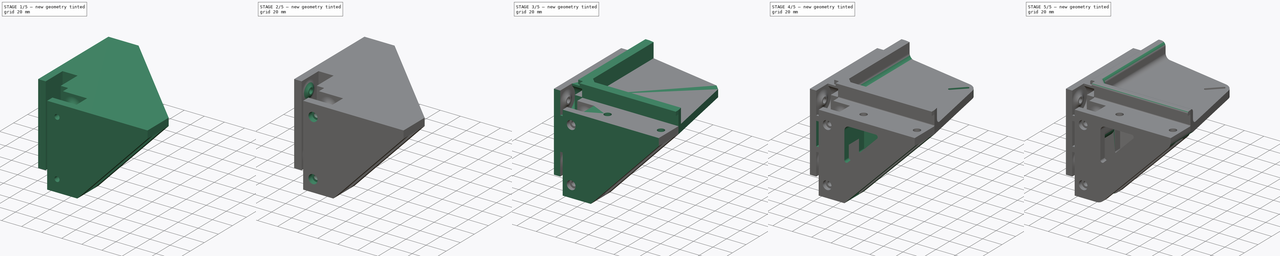
[diagram: build sequence overview — one tinted view per stage of 5, left to right]
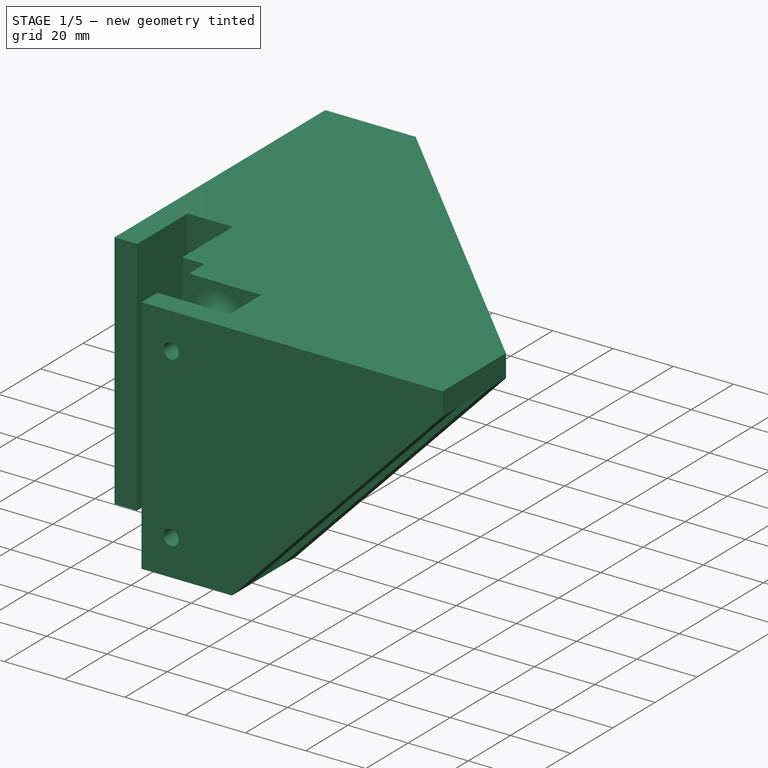
[diagram: stage 1 of 5 — iso view after this stage's code; geometry added in this stage tinted green]
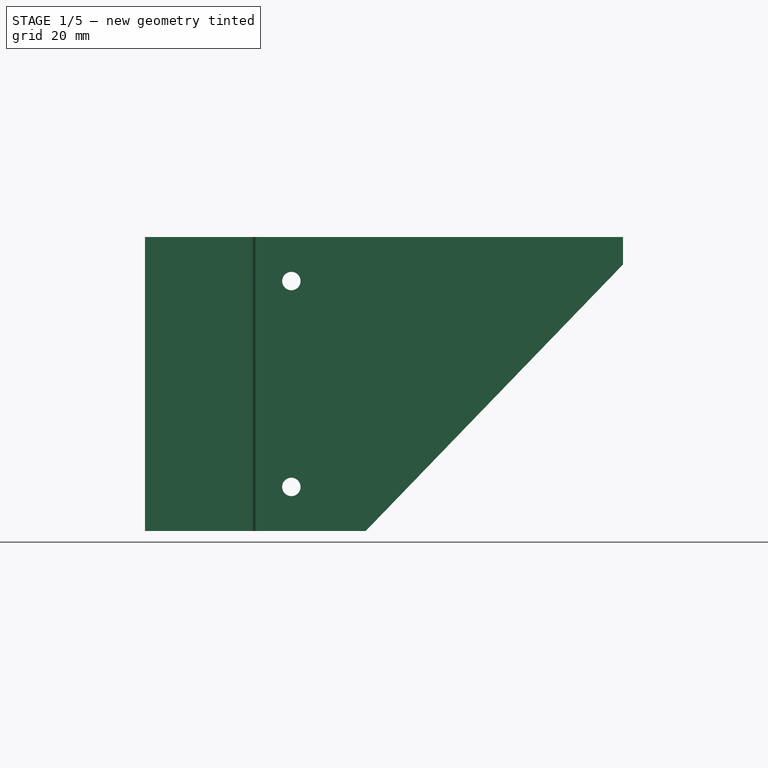
[diagram: stage 1 of 5 — front view after this stage's code; geometry added in this stage tinted green]
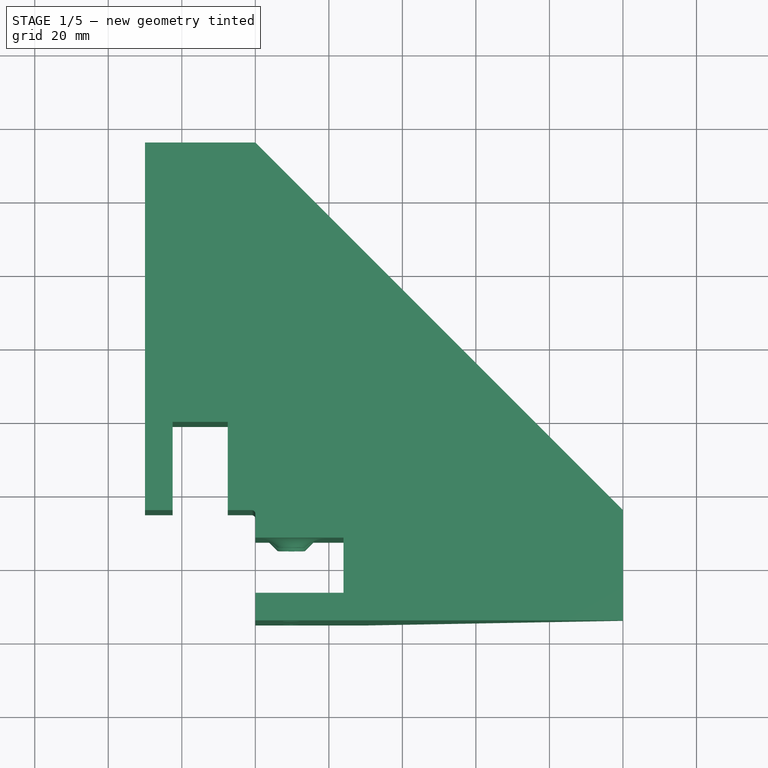
[diagram: stage 1 of 5 — top view after this stage's code; geometry added in this stage tinted green]
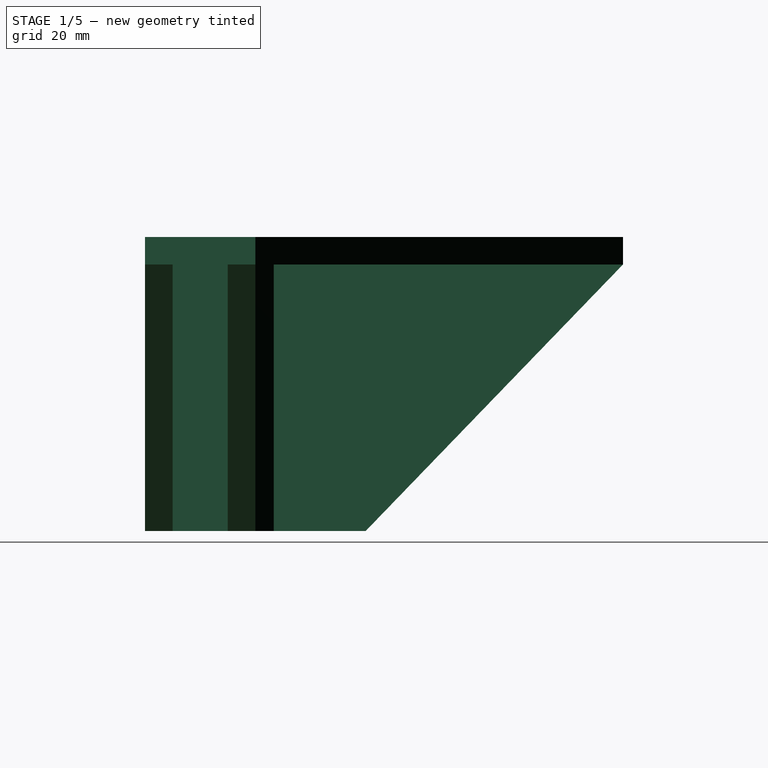
[diagram: stage 1 of 5 — right view after this stage's code; geometry added in this stage tinted green]
FCSTD DOCUMENT  (FreeCAD 0.21R33771 (Git))
Label: zCrossCorner
License: All rights reserved
LicenseURL: http://en.wikipedia.org/wiki/All_rights_reserved
objects: Sketcher::SketchObject×38, PartDesign::Pocket×24, PartDesign::Fillet×22, PartDesign::Pad×14, PartDesign::Chamfer×6, PartDesign::Body×1
note: 171 computed .brp shape members not serialized (recipe doc carries the construction recipe); baked Part::Feature solids carry a one-line shape summary decoded from their .brp

FEATURE [Sketcher::SketchObject] Sketch
  FullyConstrained = true
  MapMode = 5
  Support = -> [XY_Plane]
  sketch-geometry (19):
    g0: LineSegment StartX=0 StartY=15 StartZ=0 EndX=0 EndY=7.5 EndZ=0
    g1: LineSegment StartX=0 StartY=7.5 StartZ=0 EndX=24 EndY=7.5 EndZ=0
    g2: LineSegment StartX=24 StartY=-7.5 StartZ=0 EndX=0 EndY=-7.5 EndZ=0
    g3: LineSegment StartX=0 StartY=-7.5 StartZ=0 EndX=0 EndY=-15 EndZ=0
    g4: LineSegment StartX=0 StartY=-15 StartZ=0 EndX=100 EndY=-15 EndZ=0
    g5: LineSegment StartX=100 StartY=-15 StartZ=0 EndX=100 EndY=15 EndZ=0
    g6: LineSegment StartX=100 StartY=15 StartZ=0 EndX=0 EndY=15 EndZ=0
    g7: LineSegment StartX=24 StartY=7.5 StartZ=0 EndX=24 EndY=0 EndZ=0
    g8: LineSegment StartX=24 StartY=-7.5 StartZ=0 EndX=24 EndY=0 EndZ=0
    g9: LineSegment StartX=0 StartY=15 StartZ=0 EndX=0 EndY=115 EndZ=0
    g10: LineSegment StartX=0 StartY=115 StartZ=0 EndX=-30 EndY=115 EndZ=0
    g11: LineSegment StartX=-30 StartY=115 StartZ=0 EndX=-30 EndY=15 EndZ=0
    g12: LineSegment StartX=-30 StartY=15 StartZ=0 EndX=-22.5 EndY=15 EndZ=0
    g13: LineSegment StartX=-22.5 StartY=15 StartZ=0 EndX=-22.5 EndY=39 EndZ=0
    g14: LineSegment StartX=-22.5 StartY=39 StartZ=0 EndX=-15 EndY=39 EndZ=0
    g15: LineSegment StartX=-15 StartY=39 StartZ=0 EndX=-7.5 EndY=39 EndZ=0
    g16: LineSegment StartX=-7.5 StartY=39 StartZ=0 EndX=-7.5 EndY=15 EndZ=0
    g17: LineSegment StartX=-7.5 StartY=15 StartZ=0 EndX=0 EndY=15 EndZ=0
    g18: LineSegment StartX=0 StartY=115 StartZ=0 EndX=100 EndY=15 EndZ=0
  constraints (55):
    c: PointOnObject(g0,g-2)
    c: PointOnObject(g0,g-2)
    c: Coincident(g0,g1)
    c: Horizontal(g1)
    c: PointOnObject(g2,g-2)
    c: Horizontal(g2)
    c: Coincident(g2,g3)
    c: PointOnObject(g3,g-2)
    c: Coincident(g3,g4)
    c: Horizontal(g4)
    c: Coincident(g4,g5)
    c: Vertical(g5)
    c: Coincident(g5,g6)
    c: Coincident(g6,g0)
    c: Horizontal(g6)
    c: Distance(g5) = 30
    c: Coincident(g7,g1)
    c: PointOnObject(g7,g-1)
    c: Vertical(g7)
    c: Coincident(g8,g2)
    c: Coincident(g8,g7)
    c: Vertical(g8)
    c: Equal(g8,g7)
    c: Equal(g7,g3)
    c: Equal(g3,g0)
    c: Coincident(g9,g0)
    c: PointOnObject(g9,g-2)
    c: Coincident(g9,g10)
    c: Horizontal(g10)
    c: Coincident(g10,g11)
    c: Vertical(g11)
    c: Coincident(g11,g12)
    c: Coincident(g12,g13)
    c: Vertical(g13)
    c: Coincident(g13,g14)
    c: Coincident(g14,g15)
    c: Horizontal(g15)
    c: Coincident(g15,g16)
    c: Vertical(g16)
    c: Coincident(g16,g17)
    c: Coincident(g17,g0)
    c: Horizontal(g17)
    c: Horizontal(g12)
    c: Horizontal(g14)
    c: Equal(g12,g14)
    c: Equal(g14,g15)
    c: Equal(g15,g17)
    c: Equal(g17,g0)
    c: PointOnObject(g12,g17)
    c: Equal(g16,g1)
    c: Distance(g2) = 24
    c: Equal(g4,g11)
    c: Distance(g4) = 100
    c: Coincident(g18,g10)
    c: Coincident(g18,g5)
FEATURE [PartDesign::Pad] Pad
  Direction = (0,0,1)
  Length = 80
  Length2 = 10
  Profile = -> Sketch
  ReferenceAxis = -> Sketch [N_Axis]
  Refine = true
  Type = 0
FEATURE [Sketcher::SketchObject] Sketch001
  ExternalGeometry = -> [Pad]
  FullyConstrained = true
  MapMode = 5
  Placement = pos=(0,-15,0) rot=(1,0,0;1.5708rad)
  Support = -> [Pad]
  sketch-geometry (3):
    g0: LineSegment StartX=30 StartY=3.2e-15 StartZ=0 EndX=100 EndY=0 EndZ=0
    g1: LineSegment StartX=100 StartY=0 StartZ=0 EndX=100 EndY=72.5 EndZ=0
    g2: LineSegment StartX=100 StartY=72.5 StartZ=0 EndX=30 EndY=3.2e-15 EndZ=0
  constraints (8):
    c: PointOnObject(g0,g-1)
    c: Coincident(g0,g-4)
    c: Coincident(g0,g1)
    c: PointOnObject(g1,g-4)
    c: Coincident(g1,g2)
    c: Coincident(g2,g0)
    c: Distance(g-1,g0) = 30
    c: Distance(g1,g-4) = 7.5
FEATURE [PartDesign::Pocket] Pocket
  BaseFeature = -> Pad
  Direction = (0,1,-2e-16)
  Length = 150
  Length2 = 5
  Profile = -> Sketch001
  ReferenceAxis = -> Sketch001 [N_Axis]
  Refine = true
  Type = 0
FEATURE [Sketcher::SketchObject] Sketch002
  ExternalGeometry = -> [Pocket]
  FullyConstrained = true
  MapMode = 5
  Placement = pos=(-30,0,0) rot=(0.57735,-0.57735,-0.57735;2.0944rad)
  Support = -> [Pocket]
  sketch-geometry (3):
    g0: LineSegment StartX=-115 StartY=72.5 StartZ=0 EndX=-115 EndY=0 EndZ=0
    g1: LineSegment StartX=-115 StartY=0 StartZ=0 EndX=-45 EndY=0 EndZ=0
    g2: LineSegment StartX=-45 StartY=0 StartZ=0 EndX=-115 EndY=72.5 EndZ=0
  constraints (8):
    c: PointOnObject(g0,g-3)
    c: Coincident(g0,g-3)
    c: Coincident(g0,g1)
    c: PointOnObject(g1,g-1)
    c: Coincident(g1,g2)
    c: Coincident(g2,g0)
    c: Distance(g1,g-5) = 30
    c: Distance(g0,g-4) = 7.5
FEATURE [PartDesign::Pocket] Pocket001
  BaseFeature = -> Pocket
  Direction = (1,0,0)
  Length = 150
  Length2 = 5
  Profile = -> Sketch002
  ReferenceAxis = -> Sketch002 [N_Axis]
  Refine = true
  Type = 0
FEATURE [Sketcher::SketchObject] Sketch003
  ExternalGeometry = -> [Pocket001]
  FullyConstrained = true
  MapMode = 5
  Placement = pos=(0,0,0) rot=(1,0,0;3.14159rad)
  Support = -> [Pocket001]
  sketch-geometry (11):
    g0: LineSegment StartX=7.1e-15 StartY=-15 StartZ=0 EndX=100 EndY=-15 EndZ=0
    g1: LineSegment StartX=100 StartY=-15 StartZ=0 EndX=100 EndY=-115 EndZ=0
    g2: LineSegment StartX=100 StartY=-115 StartZ=0 EndX=0 EndY=-115 EndZ=0
    g3: LineSegment StartX=7.1e-15 StartY=-115 StartZ=0 EndX=7.1e-15 EndY=-15 EndZ=0
    g4: LineSegment StartX=30 StartY=-45 StartZ=0 EndX=7.1e-15 EndY=-45 EndZ=0
    g5: LineSegment StartX=7.1e-15 StartY=-45 StartZ=0 EndX=7.1e-15 EndY=-15 EndZ=0
    g6: LineSegment StartX=7.1e-15 StartY=-15 StartZ=0 EndX=30 EndY=-15 EndZ=0
    g7: LineSegment StartX=30 StartY=-15 StartZ=0 EndX=30 EndY=-45 EndZ=0
    g8: LineSegment StartX=7.1e-15 StartY=-115 StartZ=0 EndX=7.3e-15 EndY=-20 EndZ=0
    g9: LineSegment StartX=100 StartY=-15 StartZ=0 EndX=5 EndY=-15 EndZ=0
    g10: LineSegment StartX=7.3e-15 StartY=-20 StartZ=0 EndX=5 EndY=-15 EndZ=0
  constraints (30):
    c: Coincident(g0,g1)
    c: Coincident(g1,g2)
    c: Coincident(g2,g3)
    c: Coincident(g3,g0)
    c: Horizontal(g0)
    c: Horizontal(g2)
    c: Vertical(g1)
    c: Vertical(g3)
    c: Equal(g0,g3)
    c: Distance(g0) = 100
    c: Coincident(g4,g5)
    c: Coincident(g5,g6)
    c: Coincident(g6,g7)
    c: Coincident(g7,g4)
    c: Horizontal(g4)
    c: Horizontal(g6)
    c: Vertical(g5)
    c: Vertical(g7)
    c: Coincident(g4,g-4)
    c: Coincident(g5,g0)
    c: Equal(g4,g7)
    c: Distance(g7) = 30
    c: Coincident(g8,g2)
    c: PointOnObject(g8,g3)
    c: Coincident(g9,g1)
    c: PointOnObject(g9,g0)
    c: Coincident(g10,g8)
    c: Coincident(g10,g9)
    c: Equal(g8,g9)
    c: Distance(g8) = 95
FEATURE [PartDesign::Pocket] Pocket002
  BaseFeature = -> Pocket001
  Direction = (0,0,1)
  Length = 72.5
  Length2 = 5
  Profile = -> Sketch003
  ReferenceAxis = -> Sketch003 [N_Axis]
  Refine = true
  Type = 0
FEATURE [PartDesign::Fillet] Fillet
  Base = -> Pocket002 [Edge47]
  BaseFeature = -> Pocket002
  Radius = 1
  Refine = true
  SupportTransform = false
  UseAllEdges = false
FEATURE [Sketcher::SketchObject] Sketch004
  ExternalGeometry = -> [Fillet]
  FullyConstrained = true
  MapMode = 5
  Placement = pos=(0,115,0) rot=(0,0.707107,0.707107;3.14159rad)
  Support = -> [Fillet]
  sketch-geometry (4):
    g0: LineSegment StartX=7.5 StartY=72.5 StartZ=0 EndX=22.5 EndY=72.5 EndZ=0
    g1: LineSegment StartX=22.5 StartY=72.5 StartZ=0 EndX=22.5 EndY=-7.5 EndZ=0
    g2: LineSegment StartX=22.5 StartY=-7.5 StartZ=0 EndX=7.5 EndY=-7.5 EndZ=0
    g3: LineSegment StartX=7.5 StartY=-7.5 StartZ=0 EndX=7.5 EndY=72.5 EndZ=0
  constraints (12):
    c: Coincident(g0,g1)
    c: Coincident(g1,g2)
    c: Coincident(g2,g3)
    c: Coincident(g3,g0)
    c: Horizontal(g0)
    c: Horizontal(g2)
    c: Vertical(g1)
    c: Vertical(g3)
    c: PointOnObject(g0,g-3)
    c: Distance(g0,g-3) = 7.5
    c: Distance(g0,g-3) = 7.5
    c: Distance(g1) = 80
FEATURE [PartDesign::Pocket] Pocket003
  BaseFeature = -> Fillet
  Direction = (0,-1,2e-16)
  Length = 70
  Length2 = 5
  Profile = -> Sketch004
  ReferenceAxis = -> Sketch004 [N_Axis]
  Refine = true
  Type = 0
FEATURE [Sketcher::SketchObject] Sketch005
  ExternalGeometry = -> [Pocket003]
  FullyConstrained = true
  MapMode = 5
  Placement = pos=(100,0,0) rot=(0.57735,0.57735,0.57735;2.0944rad)
  Support = -> [Pocket003]
  sketch-geometry (4):
    g0: LineSegment StartX=-7.5 StartY=72.5 StartZ=0 EndX=7.5 EndY=72.5 EndZ=0
    g1: LineSegment StartX=7.5 StartY=72.5 StartZ=0 EndX=7.5 EndY=-7.5 EndZ=0
    g2: LineSegment StartX=7.5 StartY=-7.5 StartZ=0 EndX=-7.5 EndY=-7.5 EndZ=0
    g3: LineSegment StartX=-7.5 StartY=-7.5 StartZ=0 EndX=-7.5 EndY=72.5 EndZ=0
  constraints (12):
    c: Coincident(g0,g1)
    c: Coincident(g1,g2)
    c: Coincident(g2,g3)
    c: Coincident(g3,g0)
    c: Horizontal(g0)
    c: Horizontal(g2)
    c: Vertical(g1)
    c: Vertical(g3)
    c: PointOnObject(g0,g-3)
    c: Distance(g0,g-3) = 7.5
    c: Distance(g1) = 80
    c: Distance(g0,g-3) = 7.5
FEATURE [PartDesign::Pocket] Pocket004
  BaseFeature = -> Pocket003
  Direction = (-1,0,0)
  Length = 70
  Length2 = 5
  Profile = -> Sketch005
  ReferenceAxis = -> Sketch005 [N_Axis]
  Refine = true
  Type = 0
FEATURE [Sketcher::SketchObject] Sketch006
  ExternalGeometry = -> [Pocket004]
  FullyConstrained = true
  MapMode = 5
  Placement = pos=(0,-15,0) rot=(1,0,0;1.5708rad)
  Support = -> [Pocket004]
  sketch-geometry (7):
    g0: Circle CenterX=9.8 CenterY=68 CenterZ=0 NormalX=0 NormalY=0 NormalZ=1 AngleXU=0 Radius=12
    g1: Circle CenterX=9.8 CenterY=12 CenterZ=0 NormalX=0 NormalY=0 NormalZ=1 AngleXU=0 Radius=12
    g2: Circle CenterX=9.8 CenterY=12 CenterZ=0 NormalX=0 NormalY=0 NormalZ=1 AngleXU=0 Radius=14.2
    g3: Circle CenterX=9.8 CenterY=68 CenterZ=0 NormalX=0 NormalY=0 NormalZ=1 AngleXU=0 Radius=14.2
    g4: LineSegment StartX=24 StartY=80 StartZ=0 EndX=24 EndY=0 EndZ=0
    g5: Circle CenterX=9.8 CenterY=68 CenterZ=0 NormalX=0 NormalY=0 NormalZ=1 AngleXU=0 Radius=2.5
    g6: Circle CenterX=9.8 CenterY=12 CenterZ=0 NormalX=0 NormalY=0 NormalZ=1 AngleXU=0 Radius=2.5
  constraints (18):
    c: Coincident(g2,g1)
    c: Coincident(g3,g0)
    c: Equal(g2,g3)
    c: Equal(g0,g1)
    c: Diameter(g1) = 24
    c: PointOnObject(g4,g-3)
    c: PointOnObject(g4,g-1)
    c: Vertical(g4)
    c: Tangent(g2,g4)
    c: Tangent(g3,g4)
    c: Distance(g-1,g4) = 24
    c: Tangent(g1,g-1)
    c: Tangent(g0,g-3)
    c: Coincident(g5,g0)
    c: Coincident(g6,g1)
    c: Equal(g6,g5)
    c: Diameter(g5) = 5
    c: Distance(g0,g3) = 2.2
FEATURE [PartDesign::Pocket] Pocket005
  BaseFeature = -> Pocket004
  Direction = (0,1,-2e-16)
  Length = 0
  Length2 = 5
  Profile = -> Sketch006
  ReferenceAxis = -> Sketch006 [N_Axis]
  Refine = true
  Type = 3
  UpToFace = -> Pocket004 [Face2]
FEATURE [Sketcher::SketchObject] Sketch007
  ExternalGeometry = -> [Pocket005]
  FullyConstrained = true
  MapMode = 5
  Placement = pos=(0,7.5,0) rot=(1,0,0;1.5708rad)
  Support = -> [Pocket005]
  sketch-geometry (2):
    g0: Circle CenterX=9.8 CenterY=68 CenterZ=0 NormalX=0 NormalY=0 NormalZ=1 AngleXU=0 Radius=2.5
    g1: Circle CenterX=9.8 CenterY=68 CenterZ=0 NormalX=0 NormalY=0 NormalZ=1 AngleXU=0 Radius=3.7
  constraints (4):
    c: Coincident(g0,g-3)
    c: Coincident(g1,g0)
    c: Equal(g-3,g0)
    c: Distance(g1,g0) = 1.2
FEATURE [PartDesign::Pad] Pad001
  BaseFeature = -> Pocket005
  Direction = (0,-1,2e-16)
  Length = 2.5
  Length2 = 10
  Profile = -> Sketch007
  ReferenceAxis = -> Sketch007 [N_Axis]
  Refine = true
  Type = 0
FEATURE [PartDesign::Chamfer] Chamfer
  Angle = 45
  Base = -> Pad001 [Edge30]
  BaseFeature = -> Pad001
  ChamferType = 0
  FlipDirection = false
  Refine = true
  Size = 2.499
  Size2 = 1
  SupportTransform = false
  UseAllEdges = false
FEATURE [PartDesign::Fillet] Fillet001
  Base = -> Chamfer [Edge1]
  BaseFeature = -> Chamfer
  Radius = 8.5
  Refine = true
  SupportTransform = false
  UseAllEdges = false
FEATURE [Sketcher::SketchObject] Sketch008
  ExternalGeometry = -> [Fillet001]
  FullyConstrained = true
  MapMode = 5
  Placement = pos=(0,7.5,0) rot=(1,0,0;1.5708rad)
  Support = -> [Fillet001]
  sketch-geometry (2):
    g0: Circle CenterX=9.8 CenterY=12 CenterZ=0 NormalX=0 NormalY=0 NormalZ=1 AngleXU=0 Radius=2.5
    g1: Circle CenterX=9.8 CenterY=12 CenterZ=0 NormalX=0 NormalY=0 NormalZ=1 AngleXU=0 Radius=3.7
  constraints (4):
    c: Coincident(g0,g-3)
    c: Coincident(g0,g1)
    c: Equal(g-3,g0)
    c: Distance(g0,g1) = 1.2
FEATURE [PartDesign::Pad] Pad002
  BaseFeature = -> Fillet001
  Direction = (0,-1,2e-16)
  Length = 2.5
  Length2 = 10
  Profile = -> Sketch008
  ReferenceAxis = -> Sketch008 [N_Axis]
  Refine = true
  Type = 0
FEATURE [PartDesign::Chamfer] Chamfer001
  Angle = 45
  Base = -> Pad002 [Edge6]
  BaseFeature = -> Pad002
  ChamferType = 0
  FlipDirection = false
  Refine = true
  Size = 2.499
  Size2 = 1
  SupportTransform = false
  UseAllEdges = false
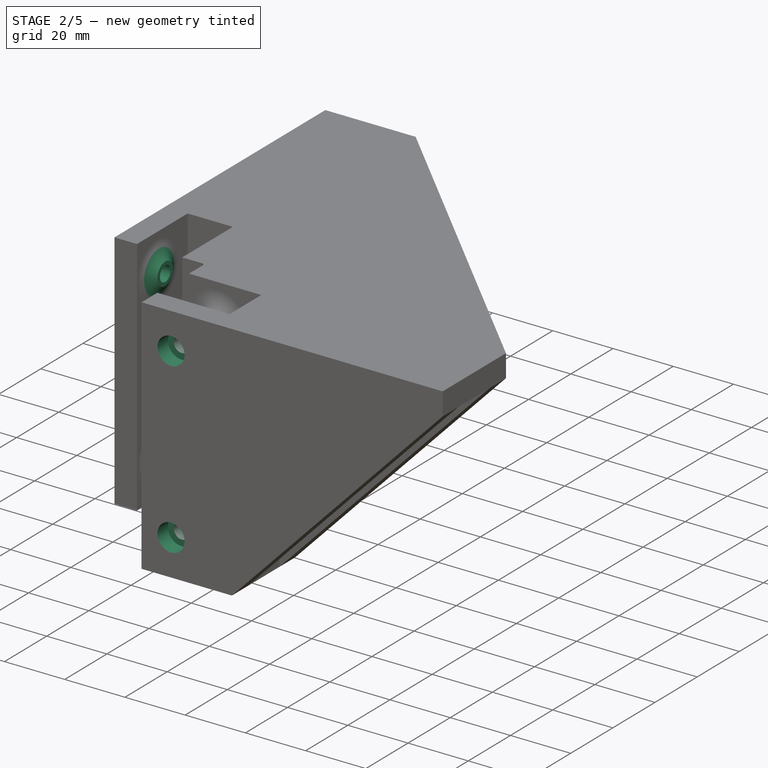
[diagram: stage 2 of 5 — iso view after this stage's code; geometry added in this stage tinted green]
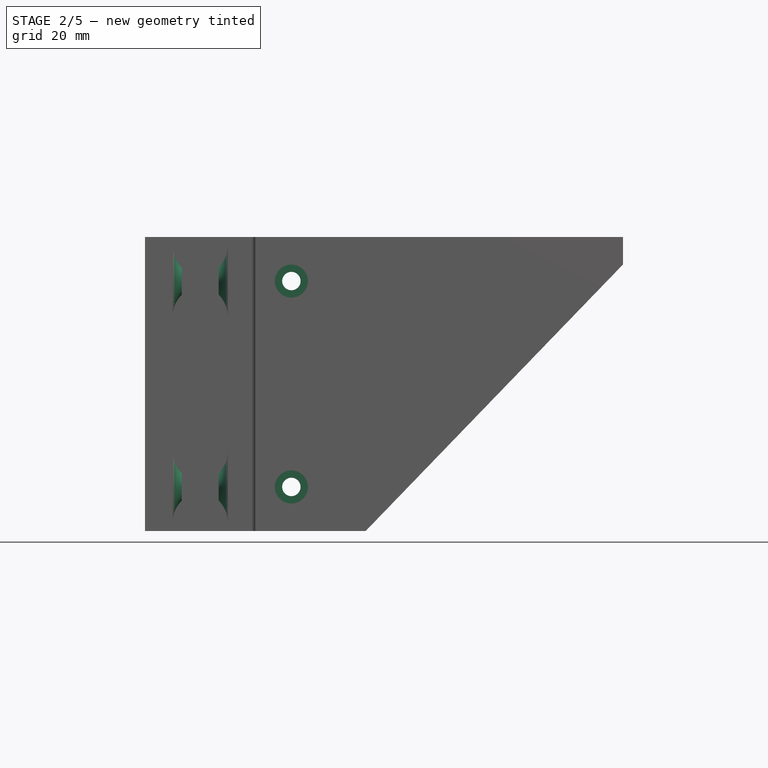
[diagram: stage 2 of 5 — front view after this stage's code; geometry added in this stage tinted green]
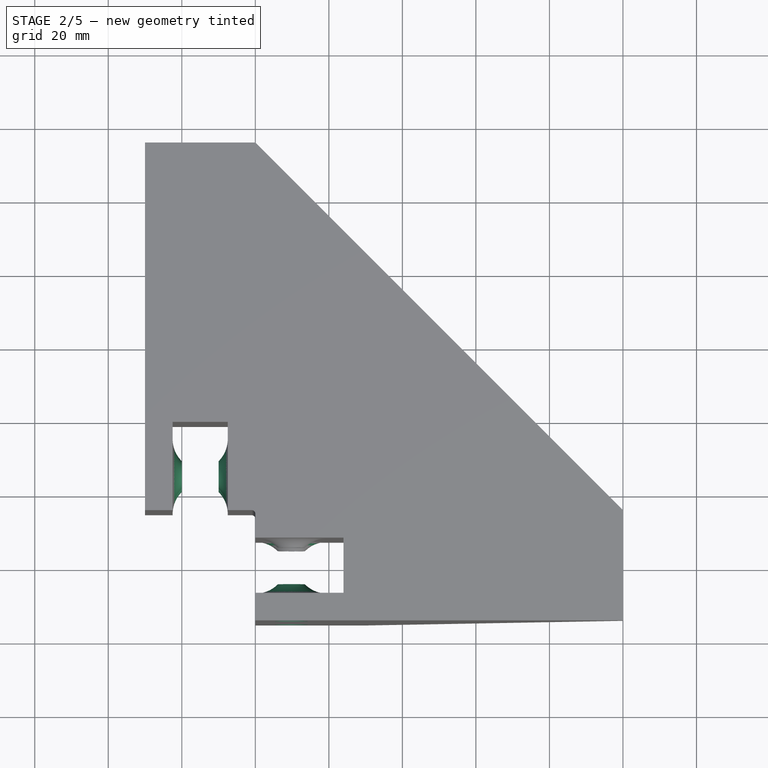
[diagram: stage 2 of 5 — top view after this stage's code; geometry added in this stage tinted green]
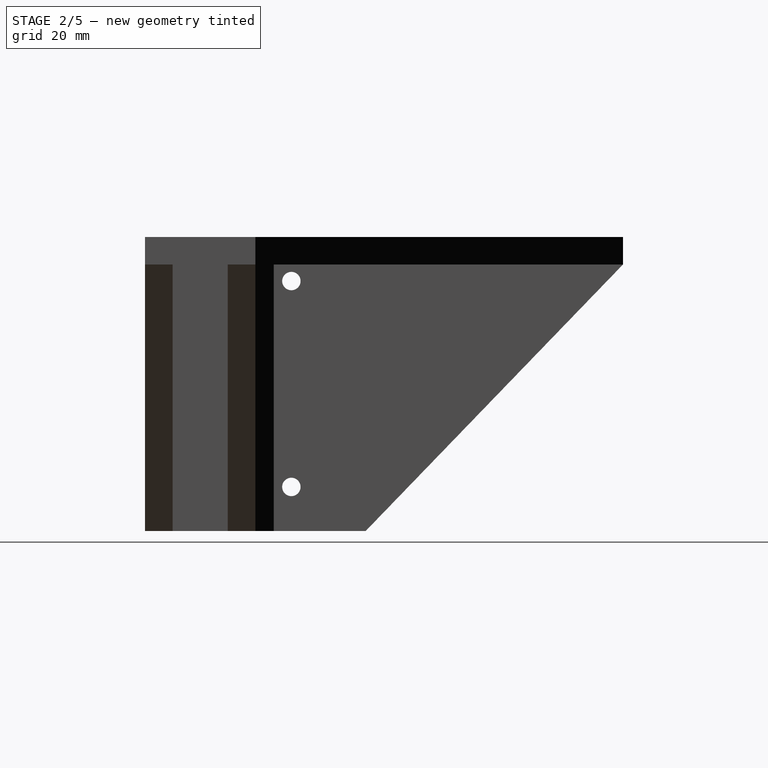
[diagram: stage 2 of 5 — right view after this stage's code; geometry added in this stage tinted green]
FEATURE [PartDesign::Fillet] Fillet002
  Base = -> Chamfer001 [Edge1]
  BaseFeature = -> Chamfer001
  Radius = 8.5
  Refine = true
  SupportTransform = false
  UseAllEdges = false
FEATURE [Sketcher::SketchObject] Sketch009
  ExternalGeometry = -> [Fillet002]
  FullyConstrained = true
  MapMode = 5
  Placement = pos=(0,-7.5,0) rot=(0,0.707107,0.707107;3.14159rad)
  Support = -> [Fillet002]
  sketch-geometry (4):
    g0: Circle CenterX=-9.8 CenterY=68 CenterZ=0 NormalX=0 NormalY=0 NormalZ=1 AngleXU=0 Radius=2.5
    g1: Circle CenterX=-9.8 CenterY=68 CenterZ=0 NormalX=0 NormalY=0 NormalZ=1 AngleXU=0 Radius=3.7
    g2: Circle CenterX=-9.8 CenterY=12 CenterZ=0 NormalX=0 NormalY=0 NormalZ=1 AngleXU=0 Radius=2.5
    g3: Circle CenterX=-9.8 CenterY=12 CenterZ=0 NormalX=0 NormalY=0 NormalZ=1 AngleXU=0 Radius=3.7
  constraints (8):
    c: Coincident(g0,g-3)
    c: Coincident(g1,g0)
    c: Coincident(g2,g-4)
    c: Coincident(g3,g2)
    c: Equal(g2,g-4)
    c: Equal(g0,g-3)
    c: Equal(g1,g3)
    c: Distance(g0,g1) = 1.2
FEATURE [PartDesign::Pad] Pad003
  BaseFeature = -> Fillet002
  Direction = (0,1,-2e-16)
  Length = 2.5
  Length2 = 10
  Profile = -> Sketch009
  ReferenceAxis = -> Sketch009 [N_Axis]
  Refine = true
  Type = 0
FEATURE [PartDesign::Chamfer] Chamfer002
  Angle = 45
  Base = -> Pad003 [Edge55,Edge56]
  BaseFeature = -> Pad003
  ChamferType = 0
  FlipDirection = false
  Refine = true
  Size = 2.499
  Size2 = 1
  SupportTransform = false
  UseAllEdges = false
FEATURE [PartDesign::Fillet] Fillet003
  Base = -> Chamfer002 [Edge1,Edge6]
  BaseFeature = -> Chamfer002
  Radius = 8.5
  Refine = true
  SupportTransform = false
  UseAllEdges = false
FEATURE [Sketcher::SketchObject] Sketch010
  ExternalGeometry = -> [Fillet003]
  FullyConstrained = true
  MapMode = 5
  Placement = pos=(-30,0,0) rot=(0.57735,-0.57735,-0.57735;2.0944rad)
  Support = -> [Fillet003]
  sketch-geometry (7):
    g0: Circle CenterX=-24.8 CenterY=68 CenterZ=0 NormalX=0 NormalY=0 NormalZ=1 AngleXU=0 Radius=14.2
    g1: Circle CenterX=-24.8 CenterY=68 CenterZ=0 NormalX=0 NormalY=0 NormalZ=1 AngleXU=0 Radius=12
    g2: Circle CenterX=-24.8 CenterY=12 CenterZ=0 NormalX=0 NormalY=0 NormalZ=1 AngleXU=0 Radius=14.2
    g3: Circle CenterX=-24.8 CenterY=12 CenterZ=0 NormalX=0 NormalY=0 NormalZ=1 AngleXU=0 Radius=12
    g4: Circle CenterX=-24.8 CenterY=68 CenterZ=0 NormalX=0 NormalY=0 NormalZ=1 AngleXU=0 Radius=2.5
    g5: Circle CenterX=-24.8 CenterY=12 CenterZ=0 NormalX=0 NormalY=0 NormalZ=1 AngleXU=0 Radius=2.5
    g6: LineSegment StartX=-39 StartY=80 StartZ=0 EndX=-39 EndY=0 EndZ=0
  constraints (18):
    c: Coincident(g1,g0)
    c: Coincident(g3,g2)
    c: Coincident(g4,g0)
    c: Coincident(g5,g2)
    c: PointOnObject(g6,g-4)
    c: PointOnObject(g6,g-1)
    c: Vertical(g6)
    c: Equal(g5,g4)
    c: Equal(g1,g3)
    c: Equal(g2,g0)
    c: Tangent(g0,g6)
    c: Tangent(g2,g6)
    c: Tangent(g1,g-4)
    c: Tangent(g3,g-1)
    c: Diameter(g4) = 5
    c: Distance(g6,g-4) = 24
    c: Distance(g1,g0) = 2.2
    c: Diameter(g1) = 24
FEATURE [PartDesign::Pocket] Pocket006
  BaseFeature = -> Fillet003
  Direction = (1,0,0)
  Length = 0
  Length2 = 5
  Profile = -> Sketch010
  ReferenceAxis = -> Sketch010 [N_Axis]
  Refine = true
  Type = 3
  UpToFace = -> Fillet003 [Face27]
FEATURE [Sketcher::SketchObject] Sketch011
  ExternalGeometry = -> [Pocket006]
  FullyConstrained = true
  MapMode = 5
  Placement = pos=(-7.5,0,0) rot=(0.57735,-0.57735,-0.57735;2.0944rad)
  Support = -> [Pocket006]
  sketch-geometry (4):
    g0: Circle CenterX=-24.8 CenterY=68 CenterZ=0 NormalX=0 NormalY=0 NormalZ=1 AngleXU=0 Radius=2.5
    g1: Circle CenterX=-24.8 CenterY=68 CenterZ=0 NormalX=0 NormalY=0 NormalZ=1 AngleXU=0 Radius=3.7
    g2: Circle CenterX=-24.8 CenterY=12 CenterZ=0 NormalX=0 NormalY=0 NormalZ=1 AngleXU=0 Radius=2.5
    g3: Circle CenterX=-24.8 CenterY=12 CenterZ=0 NormalX=0 NormalY=0 NormalZ=1 AngleXU=0 Radius=3.7
  constraints (8):
    c: Coincident(g0,g-3)
    c: Coincident(g1,g0)
    c: Coincident(g2,g-4)
    c: Coincident(g3,g2)
    c: Equal(g2,g-4)
    c: Equal(g0,g-3)
    c: Equal(g1,g3)
    c: Distance(g1,g0) = 1.2
FEATURE [PartDesign::Pad] Pad004
  BaseFeature = -> Pocket006
  Direction = (-1,0,0)
  Length = 2.5
  Length2 = 10
  Profile = -> Sketch011
  ReferenceAxis = -> Sketch011 [N_Axis]
  Refine = true
  Type = 0
FEATURE [PartDesign::Chamfer] Chamfer003
  Angle = 45
  Base = -> Pad004 [Edge58,Edge59]
  BaseFeature = -> Pad004
  ChamferType = 0
  FlipDirection = false
  Refine = true
  Size = 2.499
  Size2 = 1
  SupportTransform = false
  UseAllEdges = false
FEATURE [PartDesign::Fillet] Fillet004
  Base = -> Chamfer003 [Edge1,Edge6]
  BaseFeature = -> Chamfer003
  Radius = 8.5
  Refine = true
  SupportTransform = false
  UseAllEdges = false
FEATURE [Sketcher::SketchObject] Sketch012
  ExternalGeometry = -> [Fillet004]
  FullyConstrained = true
  MapMode = 5
  Placement = pos=(-22.5,0,0) rot=(0.57735,0.57735,0.57735;2.0944rad)
  Support = -> [Fillet004]
  sketch-geometry (4):
    g0: Circle CenterX=24.8 CenterY=68 CenterZ=0 NormalX=0 NormalY=0 NormalZ=1 AngleXU=0 Radius=2.5
    g1: Circle CenterX=24.8 CenterY=68 CenterZ=0 NormalX=0 NormalY=0 NormalZ=1 AngleXU=0 Radius=3.7
    g2: Circle CenterX=24.8 CenterY=12 CenterZ=0 NormalX=0 NormalY=0 NormalZ=1 AngleXU=0 Radius=2.5
    g3: Circle CenterX=24.8 CenterY=12 CenterZ=0 NormalX=0 NormalY=0 NormalZ=1 AngleXU=0 Radius=3.7
  constraints (8):
    c: Coincident(g0,g-3)
    c: Coincident(g1,g0)
    c: Coincident(g2,g-4)
    c: Coincident(g3,g2)
    c: Equal(g-4,g2)
    c: Equal(g0,g-3)
    c: Equal(g1,g3)
    c: Distance(g1,g0) = 1.2
FEATURE [PartDesign::Pad] Pad005
  BaseFeature = -> Fillet004
  Direction = (1,0,0)
  Length = 2.5
  Length2 = 10
  Profile = -> Sketch012
  ReferenceAxis = -> Sketch012 [N_Axis]
  Refine = true
  Type = 0
FEATURE [PartDesign::Chamfer] Chamfer004
  Angle = 45
  Base = -> Pad005 [Edge52,Edge53]
  BaseFeature = -> Pad005
  ChamferType = 0
  FlipDirection = false
  Refine = true
  Size = 2.499
  Size2 = 1
  SupportTransform = false
  UseAllEdges = false
FEATURE [PartDesign::Fillet] Fillet005
  Base = -> Chamfer004 [Edge1,Edge6]
  BaseFeature = -> Chamfer004
  Radius = 8.5
  Refine = true
  SupportTransform = false
  UseAllEdges = false
FEATURE [Sketcher::SketchObject] Sketch013
  ExternalGeometry = -> [Fillet005]
  FullyConstrained = true
  MapMode = 5
  Placement = pos=(-30,0,0) rot=(0.57735,-0.57735,-0.57735;2.0944rad)
  Support = -> [Fillet005]
  sketch-geometry (2):
    g0: Circle CenterX=-24.8 CenterY=68 CenterZ=0 NormalX=0 NormalY=0 NormalZ=1 AngleXU=0 Radius=4.5
    g1: Circle CenterX=-24.8 CenterY=12 CenterZ=0 NormalX=0 NormalY=0 NormalZ=1 AngleXU=0 Radius=4.5
  constraints (4):
    c: Coincident(g0,g-3)
    c: Coincident(g1,g-4)
    c: Equal(g1,g0)
    c: Diameter(g0) = 9
FEATURE [PartDesign::Pocket] Pocket007
  BaseFeature = -> Fillet005
  Direction = (1,0,0)
  Length = 5
  Length2 = 5
  Profile = -> Sketch013
  ReferenceAxis = -> Sketch013 [N_Axis]
  Refine = true
  Type = 0
FEATURE [Sketcher::SketchObject] Sketch014
  ExternalGeometry = -> [Pocket007]
  FullyConstrained = true
  MapMode = 5
  Placement = pos=(0,-15,0) rot=(1,0,0;1.5708rad)
  Support = -> [Pocket007]
  sketch-geometry (2):
    g0: Circle CenterX=9.8 CenterY=68 CenterZ=0 NormalX=0 NormalY=0 NormalZ=1 AngleXU=0 Radius=4.5
    g1: Circle CenterX=9.8 CenterY=12 CenterZ=0 NormalX=0 NormalY=0 NormalZ=1 AngleXU=0 Radius=4.5
  constraints (4):
    c: Coincident(g0,g-3)
    c: Coincident(g1,g-4)
    c: Equal(g0,g1)
    c: Diameter(g0) = 9
FEATURE [PartDesign::Pocket] Pocket008
  BaseFeature = -> Pocket007
  Direction = (0,1,-2e-16)
  Length = 5
  Length2 = 5
  Profile = -> Sketch014
  ReferenceAxis = -> Sketch014 [N_Axis]
  Refine = true
  Type = 0
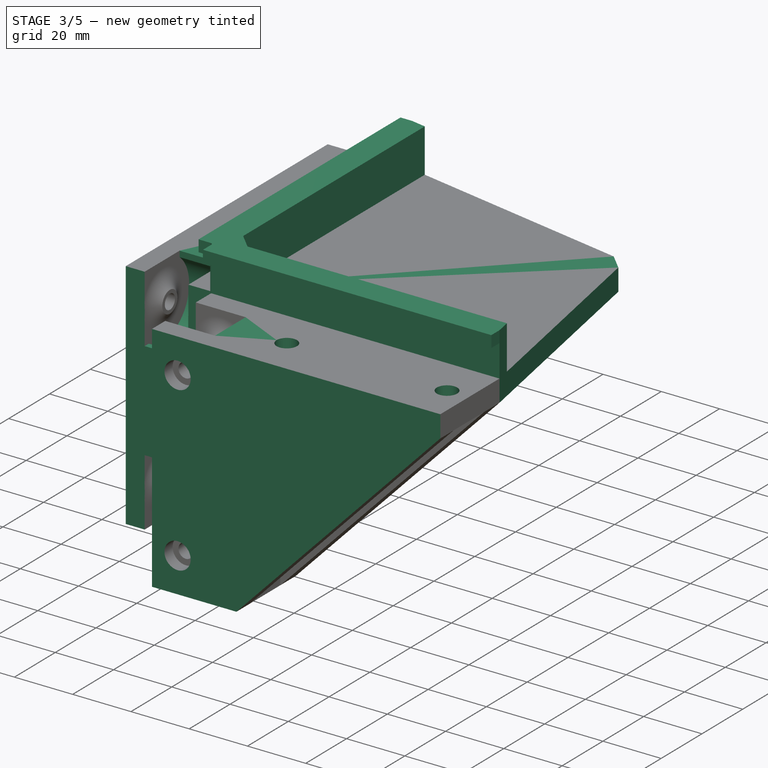
[diagram: stage 3 of 5 — iso view after this stage's code; geometry added in this stage tinted green]
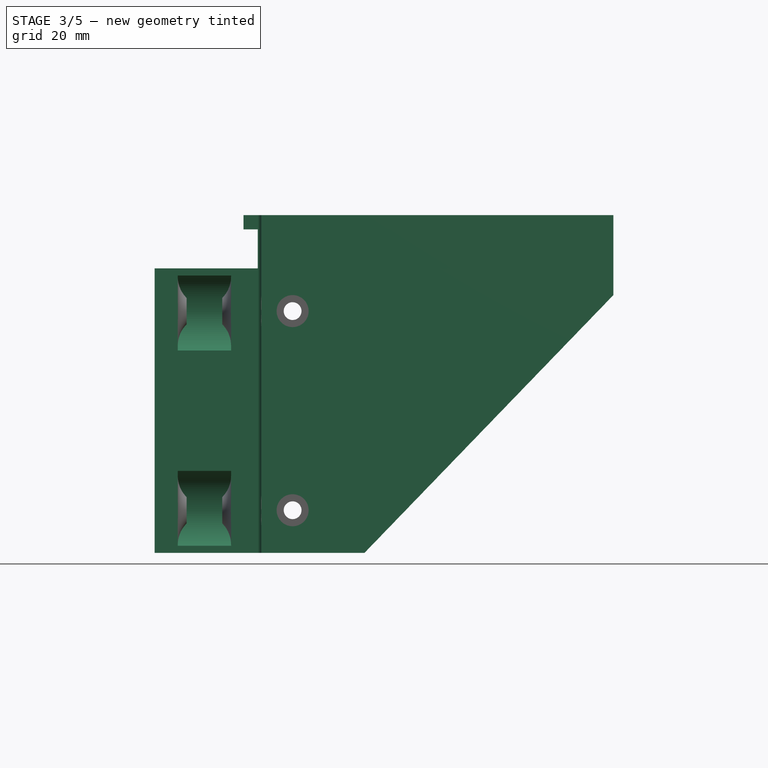
[diagram: stage 3 of 5 — front view after this stage's code; geometry added in this stage tinted green]
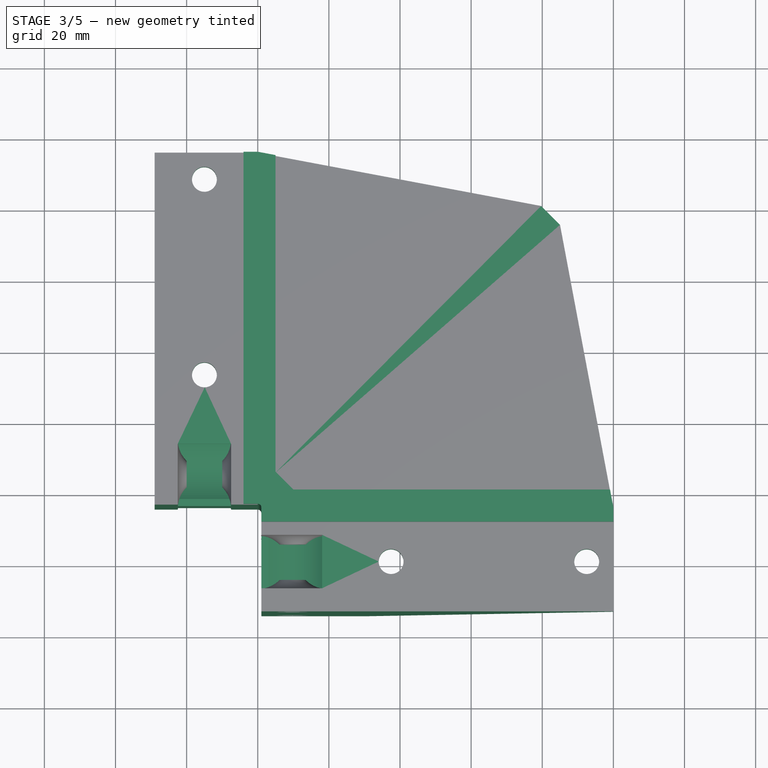
[diagram: stage 3 of 5 — top view after this stage's code; geometry added in this stage tinted green]
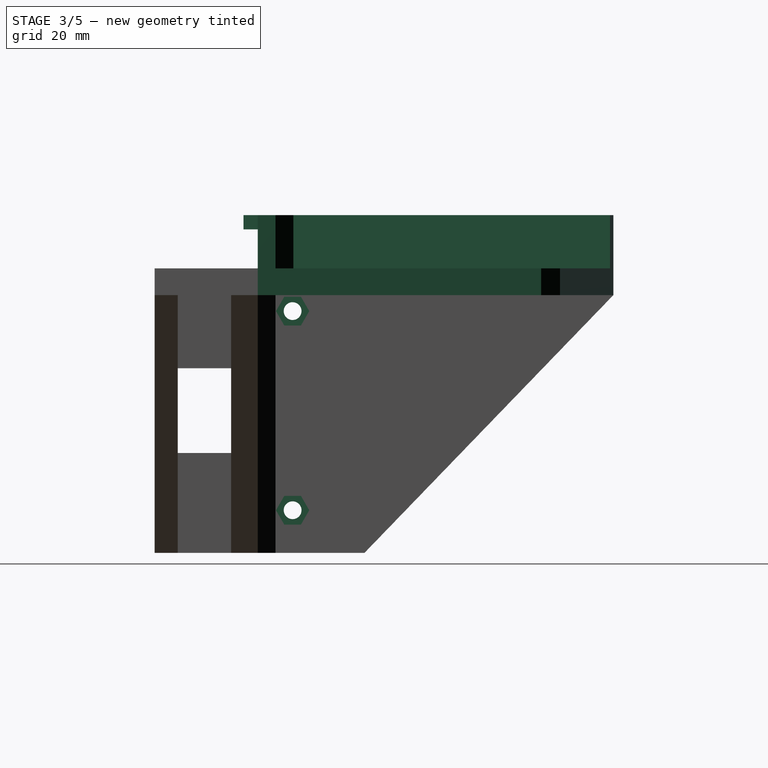
[diagram: stage 3 of 5 — right view after this stage's code; geometry added in this stage tinted green]
FEATURE [Sketcher::SketchObject] Sketch015
  ExternalGeometry = -> [Pocket008]
  FullyConstrained = true
  MapMode = 5
  Placement = pos=(0,15,0) rot=(0,0.707107,0.707107;3.14159rad)
  Support = -> [Pocket008]
  sketch-geometry (14):
    g0: LineSegment StartX=-5.12346 StartY=68 StartZ=0 EndX=-7.46173 EndY=72.05 EndZ=0
    g1: LineSegment StartX=-7.46173 StartY=72.05 StartZ=0 EndX=-12.1383 EndY=72.05 EndZ=0
    g2: LineSegment StartX=-12.1383 StartY=72.05 StartZ=0 EndX=-14.4765 EndY=68 EndZ=0
    g3: LineSegment StartX=-14.4765 StartY=68 StartZ=0 EndX=-12.1383 EndY=63.95 EndZ=0
    g4: LineSegment StartX=-12.1383 StartY=63.95 StartZ=0 EndX=-7.46173 EndY=63.95 EndZ=0
    g5: LineSegment StartX=-7.46173 StartY=63.95 StartZ=0 EndX=-5.12346 EndY=68 EndZ=0
    g6: Circle CenterX=-9.8 CenterY=68 CenterZ=0 NormalX=0 NormalY=0 NormalZ=1 AngleXU=0 Radius=4.67654
    g7: LineSegment StartX=-14.4765 StartY=12 StartZ=0 EndX=-12.1383 EndY=7.95 EndZ=0
    g8: LineSegment StartX=-12.1383 StartY=7.95 StartZ=0 EndX=-7.46173 EndY=7.95 EndZ=0
    g9: LineSegment StartX=-7.46173 StartY=7.95 StartZ=0 EndX=-5.12346 EndY=12 EndZ=0
    g10: LineSegment StartX=-5.12346 StartY=12 StartZ=0 EndX=-7.46173 EndY=16.05 EndZ=0
    g11: LineSegment StartX=-7.46173 StartY=16.05 StartZ=0 EndX=-12.1383 EndY=16.05 EndZ=0
    g12: LineSegment StartX=-12.1383 StartY=16.05 StartZ=0 EndX=-14.4765 EndY=12 EndZ=0
    g13: Circle CenterX=-9.8 CenterY=12 CenterZ=0 NormalX=0 NormalY=0 NormalZ=1 AngleXU=0 Radius=4.67654
  constraints (32):
    c: Coincident(g0,g1)
    c: Coincident(g1,g2)
    c: Coincident(g2,g3)
    c: Coincident(g3,g4)
    c: Coincident(g4,g5)
    c: Coincident(g5,g0)
    c: Equal(g0, g1-g5) x5
    c: PointOnObject(g0,g6)
    c: PointOnObject(g1,g6)
    c: PointOnObject(g2,g6)
    c: PointOnObject(g3,g6)
    c: PointOnObject(g4,g6)
    c: PointOnObject(g5,g6)
    c: Coincident(g6,g-3)
    c: Coincident(g7,g8)
    c: Coincident(g8,g9)
    c: Coincident(g9,g10)
    c: Coincident(g10,g11)
    c: Coincident(g11,g12)
    c: Coincident(g12,g7)
    c: Equal(g7, g8-g12) x5
    c: PointOnObject(g7,g13)
    c: PointOnObject(g8,g13)
    c: PointOnObject(g9,g13)
    c: PointOnObject(g10,g13)
    c: PointOnObject(g11,g13)
    c: PointOnObject(g12,g13)
    c: Coincident(g13,g-4)
    c: Distance(g0,g4) = 8.1
    c: Equal(g6,g13)
    c: Horizontal(g1)
    c: Horizontal(g11)
FEATURE [PartDesign::Pocket] Pocket009
  BaseFeature = -> Pocket008
  Direction = (0,-1,2e-16)
  Length = 3
  Length2 = 5
  Profile = -> Sketch015
  ReferenceAxis = -> Sketch015 [N_Axis]
  Refine = true
  Type = 0
FEATURE [Sketcher::SketchObject] Sketch016
  ExternalGeometry = -> [Pocket009]
  FullyConstrained = true
  MapMode = 5
  Placement = pos=(7.3e-15,0,0) rot=(0.57735,0.57735,0.57735;2.0944rad)
  Support = -> [Pocket009]
  sketch-geometry (14):
    g0: LineSegment StartX=29.4765 StartY=68 StartZ=0 EndX=27.1383 EndY=72.05 EndZ=0
    g1: LineSegment StartX=27.1383 StartY=72.05 StartZ=0 EndX=22.4617 EndY=72.05 EndZ=0
    g2: LineSegment StartX=22.4617 StartY=72.05 StartZ=0 EndX=20.1235 EndY=68 EndZ=0
    g3: LineSegment StartX=20.1235 StartY=68 StartZ=0 EndX=22.4617 EndY=63.95 EndZ=0
    g4: LineSegment StartX=22.4617 StartY=63.95 StartZ=0 EndX=27.1383 EndY=63.95 EndZ=0
    g5: LineSegment StartX=27.1383 StartY=63.95 StartZ=0 EndX=29.4765 EndY=68 EndZ=0
    g6: Circle CenterX=24.8 CenterY=68 CenterZ=0 NormalX=0 NormalY=0 NormalZ=1 AngleXU=0 Radius=4.67654
    g7: LineSegment StartX=29.4765 StartY=12 StartZ=0 EndX=27.1383 EndY=16.05 EndZ=0
    g8: LineSegment StartX=27.1383 StartY=16.05 StartZ=0 EndX=22.4617 EndY=16.05 EndZ=0
    g9: LineSegment StartX=22.4617 StartY=16.05 StartZ=0 EndX=20.1235 EndY=12 EndZ=0
    g10: LineSegment StartX=20.1235 StartY=12 StartZ=0 EndX=22.4617 EndY=7.95 EndZ=0
    g11: LineSegment StartX=22.4617 StartY=7.95 StartZ=0 EndX=27.1383 EndY=7.95 EndZ=0
    g12: LineSegment StartX=27.1383 StartY=7.95 StartZ=0 EndX=29.4765 EndY=12 EndZ=0
    g13: Circle CenterX=24.8 CenterY=12 CenterZ=0 NormalX=0 NormalY=0 NormalZ=1 AngleXU=0 Radius=4.67654
  constraints (32):
    c: Coincident(g0,g1)
    c: Coincident(g1,g2)
    c: Coincident(g2,g3)
    c: Coincident(g3,g4)
    c: Coincident(g4,g5)
    c: Coincident(g5,g0)
    c: Equal(g0, g1-g5) x5
    c: PointOnObject(g0,g6)
    c: PointOnObject(g1,g6)
    c: PointOnObject(g2,g6)
    c: PointOnObject(g3,g6)
    c: PointOnObject(g4,g6)
    c: PointOnObject(g5,g6)
    c: Coincident(g6,g-3)
    c: Coincident(g7,g8)
    c: Coincident(g8,g9)
    c: Coincident(g9,g10)
    c: Coincident(g10,g11)
    c: Coincident(g11,g12)
    c: Coincident(g12,g7)
    c: Equal(g7, g8-g12) x5
    c: PointOnObject(g7,g13)
    c: PointOnObject(g8,g13)
    c: PointOnObject(g9,g13)
    c: PointOnObject(g10,g13)
    c: PointOnObject(g11,g13)
    c: PointOnObject(g12,g13)
    c: Coincident(g13,g-4)
    c: Equal(g13,g6)
    c: Distance(g0,g4) = 8.1
    c: Horizontal(g1)
    c: Horizontal(g8)
FEATURE [PartDesign::Pocket] Pocket010
  BaseFeature = -> Pocket009
  Direction = (-1,0,0)
  Length = 3
  Length2 = 5
  Profile = -> Sketch016
  ReferenceAxis = -> Sketch016 [N_Axis]
  Refine = true
  Type = 0
FEATURE [Sketcher::SketchObject] Sketch017
  ExternalGeometry = -> [Pocket010]
  FullyConstrained = true
  MapMode = 5
  Placement = pos=(0,0,80) rot=(0,0,1;0rad)
  Support = -> [Pocket010]
  sketch-geometry (10):
    g0: LineSegment StartX=-29 StartY=115 StartZ=0 EndX=-29 EndY=16 EndZ=0
    g1: LineSegment StartX=-29 StartY=16 StartZ=0 EndX=1 EndY=16 EndZ=0
    g2: LineSegment StartX=1 StartY=16 StartZ=0 EndX=1 EndY=-14 EndZ=0
    g3: LineSegment StartX=1 StartY=-14 StartZ=0 EndX=100 EndY=-14 EndZ=0
    g4: LineSegment StartX=100 StartY=-14 StartZ=0 EndX=100 EndY=115 EndZ=0
    g5: LineSegment StartX=100 StartY=115 StartZ=0 EndX=-29 EndY=115 EndZ=0
    g6: LineSegment StartX=-70 StartY=155 StartZ=0 EndX=130 EndY=155 EndZ=0
    g7: LineSegment StartX=130 StartY=155 StartZ=0 EndX=130 EndY=-45 EndZ=0
    g8: LineSegment StartX=130 StartY=-45 StartZ=0 EndX=-70 EndY=-45 EndZ=0
    g9: LineSegment StartX=-70 StartY=-45 StartZ=0 EndX=-70 EndY=155 EndZ=0
  constraints (30):
    c: PointOnObject(g0,g-3)
    c: Vertical(g0)
    c: Coincident(g0,g1)
    c: Horizontal(g1)
    c: Coincident(g1,g2)
    c: Vertical(g2)
    c: Coincident(g2,g3)
    c: Horizontal(g3)
    c: Coincident(g3,g4)
    c: Vertical(g4)
    c: Coincident(g4,g5)
    c: Coincident(g5,g0)
    c: Horizontal(g5)
    c: Coincident(g6,g7)
    c: Coincident(g7,g8)
    c: Coincident(g8,g9)
    c: Coincident(g9,g6)
    c: Horizontal(g6)
    c: Horizontal(g8)
    c: Vertical(g7)
    c: Vertical(g9)
    c: Distance(g0,g-6) = 1
    c: Distance(g0,g-5) = 1
    c: DistanceX(g-2,g2) = 1
    c: Distance(g3,g-4) = 1
    c: PointOnObject(g-7,g4)
    c: Distance(g6) = 200
    c: Equal(g6,g9)
    c: Distance(g-4,g8) = 30
    c: Distance(g-4,g7) = 30
FEATURE [PartDesign::Pocket] Pocket011
  BaseFeature = -> Pocket010
  Direction = (0,0,-1)
  Length = 100
  Length2 = 5
  Profile = -> Sketch017
  ReferenceAxis = -> Sketch017 [N_Axis]
  Refine = true
  Type = 0
FEATURE [Sketcher::SketchObject] Sketch018
  ExternalGeometry = -> [Pocket011]
  FullyConstrained = true
  MapMode = 5
  Placement = pos=(0,7.5,0) rot=(1,0,0;1.5708rad)
  Support = -> [Pocket011]
  sketch-geometry (12):
    g0: Circle CenterX=9.8 CenterY=68 CenterZ=0 NormalX=0 NormalY=0 NormalZ=1 AngleXU=0 Radius=13
    g1: Circle CenterX=9.8 CenterY=12 CenterZ=0 NormalX=0 NormalY=0 NormalZ=1 AngleXU=0 Radius=13
    g2: LineSegment StartX=18.1066 StartY=78 StartZ=0 EndX=18.1066 EndY=80 EndZ=0
    g3: LineSegment StartX=18.1066 StartY=80 StartZ=0 EndX=24 EndY=80 EndZ=0
    g4: LineSegment StartX=24 StartY=0 StartZ=0 EndX=18.1066 EndY=0 EndZ=0
    g5: LineSegment StartX=18.1066 StartY=0 StartZ=0 EndX=18.1066 EndY=2 EndZ=0
    g6: LineSegment StartX=3 StartY=56.9203 StartZ=0 EndX=1 EndY=56.9203 EndZ=0
    g7: LineSegment StartX=1 StartY=56.9203 StartZ=0 EndX=1 EndY=23.0797 EndZ=0
    g8: LineSegment StartX=1 StartY=23.0797 StartZ=0 EndX=3 EndY=23.0797 EndZ=0
    g9: ArcOfCircle CenterX=9.8 CenterY=68 CenterZ=0 NormalX=0 NormalY=0 NormalZ=1 AngleXU=0 Radius=13 StartAngle=4.16193 EndAngle=7.16082
    g10: ArcOfCircle CenterX=9.8 CenterY=12 CenterZ=0 NormalX=0 NormalY=0 NormalZ=1 AngleXU=0 Radius=13 StartAngle=5.40555 EndAngle=8.40444
    g11: LineSegment StartX=24 StartY=80 StartZ=0 EndX=24 EndY=0 EndZ=0
  constraints (32):
    c: Coincident(g0,g-5)
    c: Coincident(g1,g-6)
    c: Equal(g0,g1)
    c: Diameter(g0) = 26
    c: PointOnObject(g2,g0)
    c: PointOnObject(g2,g-4)
    c: Vertical(g2)
    c: Coincident(g2,g3)
    c: Coincident(g3,g-4)
    c: Coincident(g-3,g4)
    c: PointOnObject(g4,g-1)
    c: Coincident(g4,g5)
    c: PointOnObject(g5,g1)
    c: Vertical(g5)
    c: PointOnObject(g6,g-7)
    c: Horizontal(g6)
    c: Coincident(g6,g7)
    c: PointOnObject(g7,g-7)
    c: Coincident(g7,g8)
    c: Equal(g6,g8)
    c: Equal(g8,g2)
    c: Equal(g2,g5)
    c: Horizontal(g8)
    c: Coincident(g9,g0)
    c: Coincident(g9,g2)
    c: Coincident(g9,g6)
    c: Coincident(g10,g1)
    c: Coincident(g10,g8)
    c: Coincident(g10,g5)
    c: Coincident(g11,g3)
    c: Coincident(g11,g4)
    c: Distance(g6) = 2
FEATURE [PartDesign::Pad] Pad006
  BaseFeature = -> Pocket011
  Direction = (0,-1,2e-16)
  Length = 10
  Length2 = 10
  Profile = -> Sketch018
  ReferenceAxis = -> Sketch018 [N_Axis]
  Refine = true
  Type = 3
  UpToFace = -> Pocket011 [Face25]
FEATURE [Sketcher::SketchObject] Sketch019
  ExternalGeometry = -> [Pad006]
  FullyConstrained = true
  MapMode = 5
  Placement = pos=(-7.5,0,0) rot=(0.57735,-0.57735,-0.57735;2.0944rad)
  Support = -> [Pad006]
  sketch-geometry (12):
    g0: Circle CenterX=-24.8 CenterY=68 CenterZ=0 NormalX=0 NormalY=0 NormalZ=1 AngleXU=0 Radius=13
    g1: Circle CenterX=-24.8 CenterY=12 CenterZ=0 NormalX=0 NormalY=0 NormalZ=1 AngleXU=0 Radius=13
    g2: LineSegment StartX=-33.1066 StartY=78 StartZ=0 EndX=-33.1066 EndY=80 EndZ=0
    g3: LineSegment StartX=-33.1066 StartY=80 StartZ=0 EndX=-39 EndY=80 EndZ=0
    g4: LineSegment StartX=-39 StartY=80 StartZ=0 EndX=-39 EndY=0 EndZ=0
    g5: LineSegment StartX=-39 StartY=0 StartZ=0 EndX=-33.1066 EndY=0 EndZ=0
    g6: LineSegment StartX=-33.1066 StartY=0 StartZ=0 EndX=-33.1066 EndY=2 EndZ=0
    g7: ArcOfCircle CenterX=-24.8 CenterY=12 CenterZ=0 NormalX=0 NormalY=0 NormalZ=1 AngleXU=0 Radius=13 StartAngle=1.02034 EndAngle=4.01923
    g8: ArcOfCircle CenterX=-24.8 CenterY=68 CenterZ=0 NormalX=0 NormalY=0 NormalZ=1 AngleXU=0 Radius=13 StartAngle=2.26396 EndAngle=5.26285
    g9: LineSegment StartX=-18 StartY=56.9203 StartZ=0 EndX=-16 EndY=56.9203 EndZ=0
    g10: LineSegment StartX=-16 StartY=56.9203 StartZ=0 EndX=-16 EndY=23.0797 EndZ=0
    g11: LineSegment StartX=-16 StartY=23.0797 StartZ=0 EndX=-18 EndY=23.0797 EndZ=0
  constraints (32):
    c: Coincident(g0,g-7)
    c: Coincident(g1,g-6)
    c: Equal(g1,g0)
    c: Diameter(g0) = 26
    c: PointOnObject(g2,g0)
    c: PointOnObject(g2,g-3)
    c: Coincident(g2,g3)
    c: Coincident(g3,g-4)
    c: Coincident(g3,g4)
    c: Coincident(g4,g-4)
    c: Coincident(g4,g5)
    c: PointOnObject(g5,g-1)
    c: Coincident(g5,g6)
    c: PointOnObject(g6,g1)
    c: Coincident(g7,g1)
    c: Coincident(g7,g6)
    c: Coincident(g8,g0)
    c: Coincident(g9,g10)
    c: PointOnObject(g10,g-5)
    c: Vertical(g10)
    c: Coincident(g10,g11)
    c: Coincident(g11,g7)
    c: Horizontal(g9)
    c: Horizontal(g11)
    c: Coincident(g2,g8)
    c: Vertical(g2)
    c: Vertical(g6)
    c: Equal(g6,g11)
    c: Equal(g11,g9)
    c: Equal(g9,g2)
    c: Distance(g2) = 2
    c: Coincident(g8,g9)
FEATURE [PartDesign::Pad] Pad007
  BaseFeature = -> Pad006
  Direction = (-1,0,0)
  Length = 10
  Length2 = 10
  Profile = -> Sketch019
  ReferenceAxis = -> Sketch019 [N_Axis]
  Refine = true
  Type = 3
  UpToFace = -> Pad006 [Face30]
FEATURE [Sketcher::SketchObject] Sketch020
  ExternalGeometry = -> [Pad007]
  FullyConstrained = true
  MapMode = 5
  Placement = pos=(0,0,80) rot=(0,0,1;0rad)
  Support = -> [Pad007]
  sketch-geometry (8):
    g0: LineSegment StartX=1e-16 StartY=115 StartZ=0 EndX=1e-16 EndY=16 EndZ=0
    g1: LineSegment StartX=1e-16 StartY=16 StartZ=0 EndX=1 EndY=16 EndZ=0
    g2: LineSegment StartX=1 StartY=16 StartZ=0 EndX=1 EndY=15 EndZ=0
    g3: LineSegment StartX=1 StartY=15 StartZ=0 EndX=100 EndY=15 EndZ=0
    g4: LineSegment StartX=100 StartY=15 StartZ=0 EndX=95 EndY=20 EndZ=0
    g5: LineSegment StartX=95 StartY=20 StartZ=0 EndX=5 EndY=20 EndZ=0
    g6: LineSegment StartX=5 StartY=20 StartZ=0 EndX=5 EndY=110 EndZ=0
    g7: LineSegment StartX=5 StartY=110 StartZ=0 EndX=1e-16 EndY=115 EndZ=0
  constraints (21):
    c: Coincident(g0,g-7)
    c: PointOnObject(g0,g-8)
    c: Vertical(g0)
    c: Coincident(g0,g1)
    c: Coincident(g1,g-9)
    c: Coincident(g1,g2)
    c: PointOnObject(g2,g-9)
    c: Coincident(g2,g3)
    c: Coincident(g3,g-6)
    c: Horizontal(g3)
    c: Coincident(g3,g4)
    c: PointOnObject(g4,g-5)
    c: Coincident(g4,g5)
    c: Horizontal(g5)
    c: Coincident(g5,g6)
    c: PointOnObject(g6,g-5)
    c: Vertical(g6)
    c: Coincident(g6,g7)
    c: Coincident(g7,g0)
    c: Distance(g5,g3) = 5
    c: Distance(g5,g0) = 5
FEATURE [PartDesign::Pad] Pad008
  BaseFeature = -> Pad007
  Direction = (0,0,1)
  Length = 15
  Length2 = 10
  Profile = -> Sketch020
  ReferenceAxis = -> Sketch020 [N_Axis]
  Refine = true
  Type = 0
FEATURE [PartDesign::Fillet] Fillet006
  Base = -> Pad008 [Edge328]
  BaseFeature = -> Pad008
  Radius = 1
  Refine = true
  SupportTransform = false
  UseAllEdges = false
FEATURE [Sketcher::SketchObject] Sketch021
  ExternalGeometry = -> [Fillet006]
  FullyConstrained = true
  MapMode = 5
  Placement = pos=(0,15,0) rot=(1,0,0;1.5708rad)
  Support = -> [Fillet006]
  sketch-geometry (4):
    g0: LineSegment StartX=1 StartY=95 StartZ=0 EndX=100 EndY=95 EndZ=0
    g1: LineSegment StartX=100 StartY=95 StartZ=0 EndX=100 EndY=91 EndZ=0
    g2: LineSegment StartX=100 StartY=91 StartZ=0 EndX=1 EndY=91 EndZ=0
    g3: LineSegment StartX=1 StartY=91 StartZ=0 EndX=1 EndY=95 EndZ=0
  constraints (11):
    c: Coincident(g0,g1)
    c: Coincident(g1,g2)
    c: Coincident(g2,g3)
    c: Coincident(g3,g0)
    c: Horizontal(g0)
    c: Horizontal(g2)
    c: Vertical(g1)
    c: Vertical(g3)
    c: Coincident(g0,g-6)
    c: PointOnObject(g1,g-4)
    c: Distance(g2,g-3) = 11
FEATURE [PartDesign::Pad] Pad009
  BaseFeature = -> Fillet006
  Direction = (0,-1,2e-16)
  Length = 4
  Length2 = 10
  Profile = -> Sketch021
  ReferenceAxis = -> Sketch021 [N_Axis]
  Refine = true
  Type = 0
FEATURE [Sketcher::SketchObject] Sketch022
  ExternalGeometry = -> [Pad009]
  FullyConstrained = true
  MapMode = 5
  Placement = pos=(1e-16,0,0) rot=(0.57735,-0.57735,-0.57735;2.0944rad)
  Support = -> [Pad009]
  sketch-geometry (4):
    g0: LineSegment StartX=-115 StartY=95 StartZ=0 EndX=-16 EndY=95 EndZ=0
    g1: LineSegment StartX=-16 StartY=95 StartZ=0 EndX=-16 EndY=91 EndZ=0
    g2: LineSegment StartX=-16 StartY=91 StartZ=0 EndX=-115 EndY=91 EndZ=0
    g3: LineSegment StartX=-115 StartY=91 StartZ=0 EndX=-115 EndY=95 EndZ=0
  constraints (11):
    c: Coincident(g0,g1)
    c: Coincident(g1,g2)
    c: Coincident(g2,g3)
    c: Coincident(g3,g0)
    c: Horizontal(g0)
    c: Horizontal(g2)
    c: Vertical(g1)
    c: Vertical(g3)
    c: Coincident(g0,g-4)
    c: PointOnObject(g1,g-5)
    c: Distance(g-5,g2) = 11
FEATURE [PartDesign::Pad] Pad010
  BaseFeature = -> Pad009
  Direction = (-1,0,0)
  Length = 4
  Length2 = 10
  Profile = -> Sketch022
  ReferenceAxis = -> Sketch022 [N_Axis]
  Refine = true
  Type = 0
FEATURE [PartDesign::Chamfer] Chamfer005
  Angle = 45
  Base = -> Pad010 [Edge42]
  BaseFeature = -> Pad010
  ChamferType = 0
  FlipDirection = false
  Refine = true
  Size = 5
  Size2 = 1
  SupportTransform = false
  UseAllEdges = false
FEATURE [Sketcher::SketchObject] Sketch023
  ExternalGeometry = -> [Chamfer005]
  FullyConstrained = true
  MapMode = 5
  Placement = pos=(0,0,72.5) rot=(1,0,0;3.14159rad)
  Support = -> [Chamfer005]
  sketch-geometry (8):
    g0: Circle CenterX=-15 CenterY=-52.5 CenterZ=0 NormalX=0 NormalY=0 NormalZ=1 AngleXU=0 Radius=3.5
    g1: Circle CenterX=-15 CenterY=-107.5 CenterZ=0 NormalX=0 NormalY=0 NormalZ=1 AngleXU=0 Radius=3.5
    g2: Circle CenterX=37.5 CenterY=0 CenterZ=0 NormalX=0 NormalY=0 NormalZ=1 AngleXU=0 Radius=3.5
    g3: Circle CenterX=92.5 CenterY=0 CenterZ=0 NormalX=0 NormalY=0 NormalZ=1 AngleXU=0 Radius=3.5
    g4: Circle CenterX=37.5 CenterY=0 CenterZ=0 NormalX=0 NormalY=0 NormalZ=1 AngleXU=0 Radius=7.5
    g5: Circle CenterX=92.5 CenterY=0 CenterZ=0 NormalX=0 NormalY=0 NormalZ=1 AngleXU=0 Radius=7.5
    g6: Circle CenterX=-15 CenterY=-52.5 CenterZ=0 NormalX=0 NormalY=0 NormalZ=1 AngleXU=0 Radius=7.5
    g7: Circle CenterX=-15 CenterY=-107.5 CenterZ=0 NormalX=0 NormalY=0 NormalZ=1 AngleXU=0 Radius=7.5
  constraints (20):
    c: PointOnObject(g3,g-1)
    c: PointOnObject(g2,g-1)
    c: Coincident(g4,g2)
    c: Coincident(g5,g3)
    c: Coincident(g6,g0)
    c: Coincident(g7,g1)
    c: Tangent(g4,g-3)
    c: Tangent(g5,g-4)
    c: Tangent(g5,g-10)
    c: Tangent(g7,g-9)
    c: Tangent(g7,g-7)
    c: Tangent(g7,g-8)
    c: Tangent(g6,g-6)
    c: Tangent(g6,g-8)
    c: Tangent(g6,g-7)
    c: Tangent(g-5,g4)
    c: Equal(g2,g3)
    c: Equal(g3,g0)
    c: Equal(g0,g1)
    c: Diameter(g2) = 7
FEATURE [PartDesign::Pocket] Pocket012
  BaseFeature = -> Chamfer005
  Direction = (0,0,1)
  Length = 0
  Length2 = 5
  Profile = -> Sketch023
  ReferenceAxis = -> Sketch023 [N_Axis]
  Refine = true
  Type = 3
  UpToFace = -> Chamfer005 [Face28]
FEATURE [Sketcher::SketchObject] Sketch024
  ExternalGeometry = -> [Pocket012]
  FullyConstrained = true
  MapMode = 5
  Placement = pos=(0,0,72.5) rot=(1,0,0;3.14159rad)
  Support = -> [Pocket012]
  sketch-geometry (7):
    g0: LineSegment StartX=5 StartY=-15 StartZ=0 EndX=100 EndY=-15 EndZ=0
    g1: LineSegment StartX=100 StartY=-15 StartZ=0 EndX=85 EndY=-94.6967 EndZ=0
    g2: LineSegment StartX=85 StartY=-94.6967 StartZ=0 EndX=79.6967 EndY=-100 EndZ=0
    g3: LineSegment StartX=79.6967 StartY=-100 StartZ=0 EndX=7e-16 EndY=-115 EndZ=0
    g4: LineSegment StartX=7e-16 StartY=-115 StartZ=0 EndX=7.3e-15 EndY=-20 EndZ=0
    g5: LineSegment StartX=7.3e-15 StartY=-20 StartZ=0 EndX=5 EndY=-15 EndZ=0
    g6: LineSegment StartX=7e-16 StartY=-115 StartZ=0 EndX=100 EndY=-15 EndZ=0
  constraints (16):
    c: Coincident(g-4,g0)
    c: Coincident(g0,g-5)
    c: Coincident(g0,g1)
    c: Coincident(g1,g2)
    c: Coincident(g2,g3)
    c: Coincident(g3,g-5)
    c: Coincident(g3,g4)
    c: Coincident(g4,g-4)
    c: Coincident(g4,g5)
    c: Coincident(g5,g0)
    c: Equal(g3,g1)
    c: Parallel(g5,g2)
    c: Distance(g2) = 7.5
    c: Distance(g1,g4) = 85
    c: Coincident(g6,g3)
    c: Coincident(g6,g1)
FEATURE [PartDesign::Pad] Pad011
  BaseFeature = -> Pocket012
  Direction = (0,0,-1)
  Length = 10
  Length2 = 10
  Profile = -> Sketch024
  ReferenceAxis = -> Sketch024 [N_Axis]
  Refine = true
  Reversed = true
  Type = 3
  UpToFace = -> Pocket012 [Face2]
FEATURE [Sketcher::SketchObject] Sketch025
  ExternalGeometry = -> [Pad011]
  FullyConstrained = true
  MapMode = 5
  Placement = pos=(0,0,80) rot=(0,0,1;0rad)
  Support = -> [Pad011]
  sketch-geometry (6):
    g0: LineSegment StartX=0 StartY=115 StartZ=0 EndX=5 EndY=110 EndZ=0
    g1: LineSegment StartX=5 StartY=110 StartZ=0 EndX=5 EndY=114.059 EndZ=0
    g2: LineSegment StartX=5 StartY=114.059 StartZ=0 EndX=-3e-16 EndY=115 EndZ=0
    g3: LineSegment StartX=95 StartY=20 StartZ=0 EndX=99.0589 EndY=20 EndZ=0
    g4: LineSegment StartX=99.0589 StartY=20 StartZ=0 EndX=100 EndY=15 EndZ=0
    g5: LineSegment StartX=100 StartY=15 StartZ=0 EndX=95 EndY=20 EndZ=0
  constraints (14):
    c: Coincident(g-8,g0)
    c: Coincident(g0,g-4)
    c: Coincident(g0,g1)
    c: PointOnObject(g1,g-8)
    c: Vertical(g1)
    c: Coincident(g1,g2)
    c: Coincident(g2,g0)
    c: Coincident(g-6,g3)
    c: PointOnObject(g3,g-7)
    c: Horizontal(g3)
    c: Coincident(g3,g4)
    c: Coincident(g4,g-7)
    c: Coincident(g4,g5)
    c: Coincident(g5,g3)
FEATURE [PartDesign::Pad] Pad012
  BaseFeature = -> Pad011
  Direction = (0,0,1)
  Length = 10
  Length2 = 10
  Profile = -> Sketch025
  ReferenceAxis = -> Sketch025 [N_Axis]
  Refine = true
  Type = 3
  UpToFace = -> Pad011 [Face4]
FEATURE [Sketcher::SketchObject] Sketch026
  ExternalGeometry = -> [Pad012]
  FullyConstrained = true
  MapMode = 5
  Placement = pos=(1,0,0) rot=(0.57735,-0.57735,-0.57735;2.0944rad)
  Support = -> [Pad012]
  sketch-geometry (4):
    g0: LineSegment StartX=-7.5 StartY=51.9203 StartZ=0 EndX=7.5 EndY=51.9203 EndZ=0
    g1: LineSegment StartX=7.5 StartY=51.9203 StartZ=0 EndX=7.5 EndY=28.0797 EndZ=0
    g2: LineSegment StartX=7.5 StartY=28.0797 StartZ=0 EndX=-7.5 EndY=28.0797 EndZ=0
    g3: LineSegment StartX=-7.5 StartY=28.0797 StartZ=0 EndX=-7.5 EndY=51.9203 EndZ=0
  constraints (12):
    c: Coincident(g0,g1)
    c: Coincident(g1,g2)
    c: Coincident(g2,g3)
    c: Coincident(g3,g0)
    c: Horizontal(g0)
    c: Horizontal(g2)
    c: Vertical(g1)
    c: Vertical(g3)
    c: PointOnObject(g-3,g1)
    c: PointOnObject(g-3,g3)
    c: Distance(g0,g-3) = 5
    c: Distance(g2,g-4) = 5
FEATURE [PartDesign::Pocket] Pocket013
  BaseFeature = -> Pad012
  Direction = (1,0,0)
  Length = 0
  Length2 = 5
  Profile = -> Sketch026
  ReferenceAxis = -> Sketch026 [N_Axis]
  Refine = true
  Type = 3
  UpToFace = -> Pad012 [Face48]
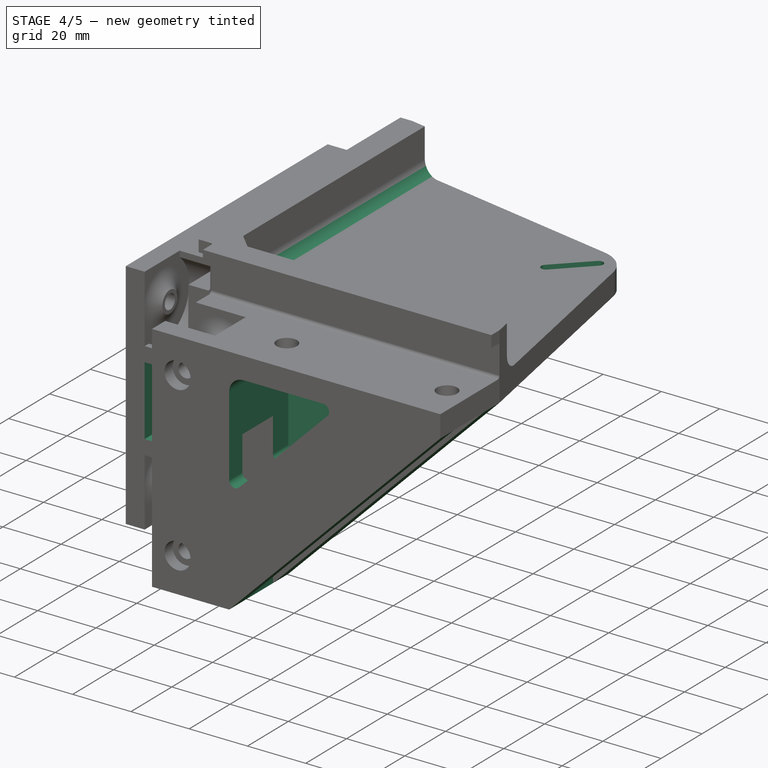
[diagram: stage 4 of 5 — iso view after this stage's code; geometry added in this stage tinted green]
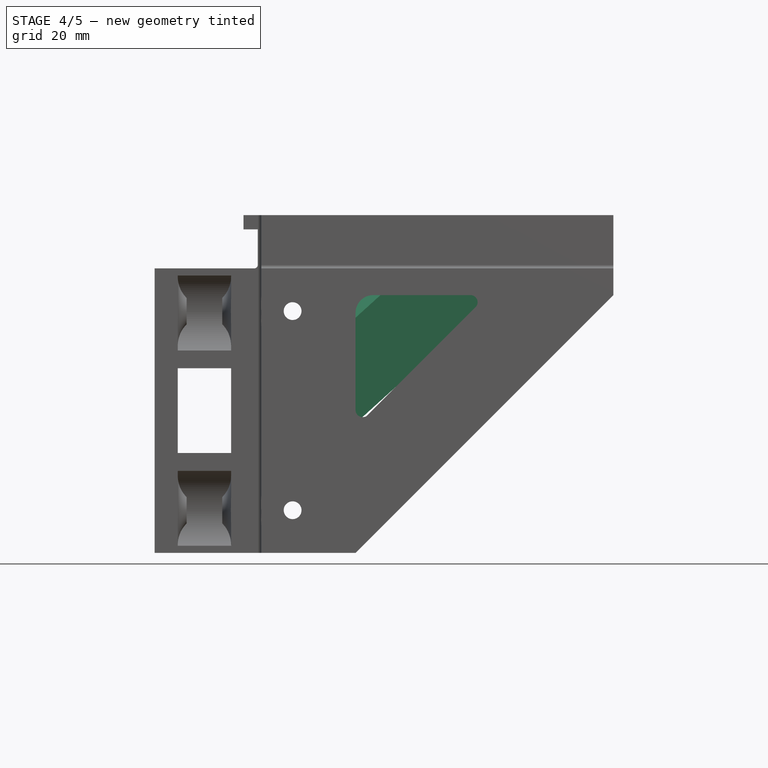
[diagram: stage 4 of 5 — front view after this stage's code; geometry added in this stage tinted green]
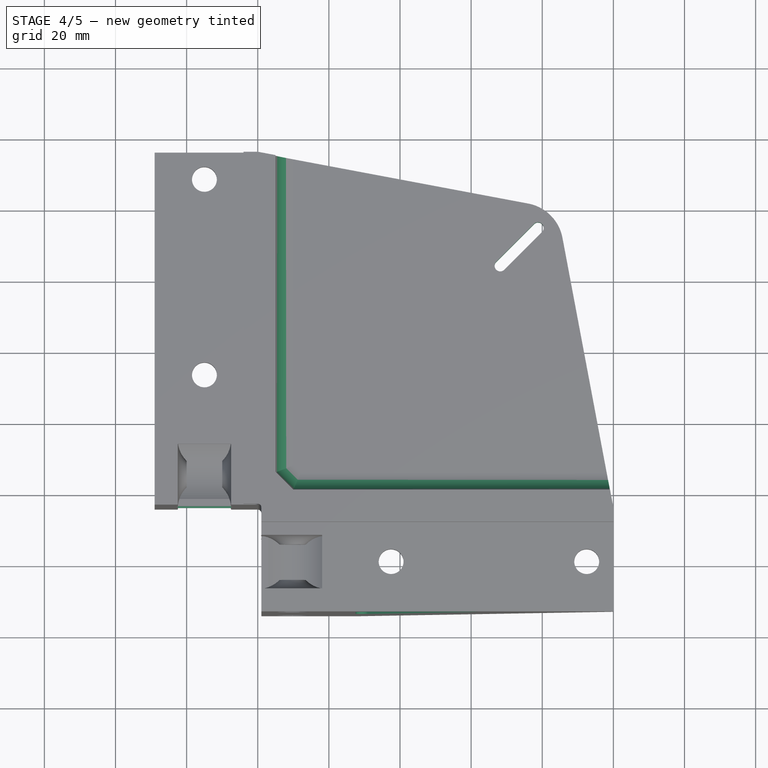
[diagram: stage 4 of 5 — top view after this stage's code; geometry added in this stage tinted green]
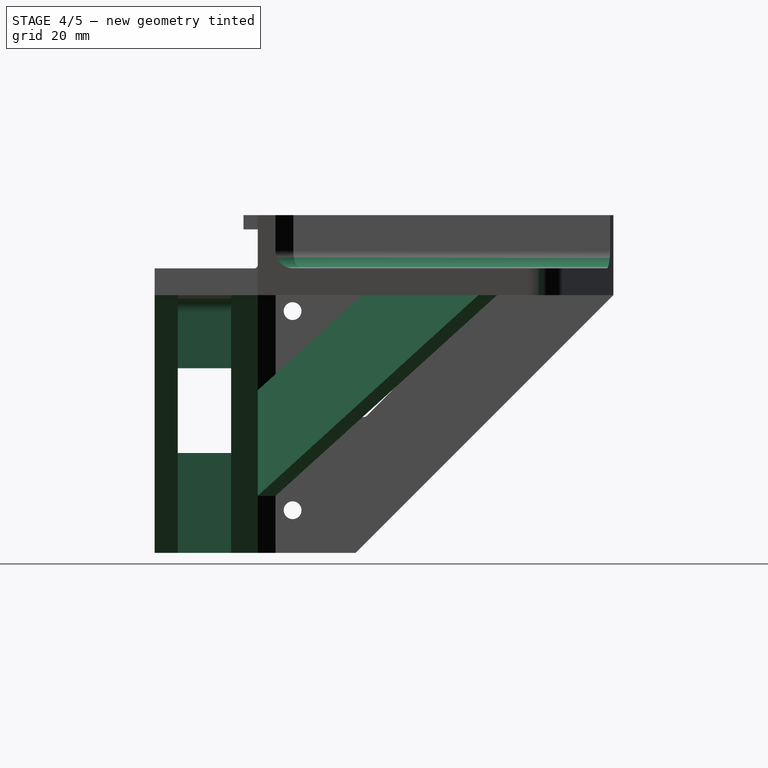
[diagram: stage 4 of 5 — right view after this stage's code; geometry added in this stage tinted green]
FEATURE [Sketcher::SketchObject] Sketch027
  ExternalGeometry = -> [Pocket013]
  FullyConstrained = true
  MapMode = 5
  Placement = pos=(0,16,0) rot=(1,0,0;1.5708rad)
  Support = -> [Pocket013]
  sketch-geometry (4):
    g0: LineSegment StartX=-22.5 StartY=51.9203 StartZ=0 EndX=-7.5 EndY=51.9203 EndZ=0
    g1: LineSegment StartX=-7.5 StartY=51.9203 StartZ=0 EndX=-7.5 EndY=28.0797 EndZ=0
    g2: LineSegment StartX=-7.5 StartY=28.0797 StartZ=0 EndX=-22.5 EndY=28.0797 EndZ=0
    g3: LineSegment StartX=-22.5 StartY=28.0797 StartZ=0 EndX=-22.5 EndY=51.9203 EndZ=0
  constraints (12):
    c: Coincident(g0,g1)
    c: Coincident(g1,g2)
    c: Coincident(g2,g3)
    c: Coincident(g3,g0)
    c: Horizontal(g0)
    c: Horizontal(g2)
    c: Vertical(g1)
    c: Vertical(g3)
    c: PointOnObject(g-4,g1)
    c: PointOnObject(g-4,g3)
    c: Distance(g2,g-4) = 5
    c: Distance(g0,g-3) = 5
FEATURE [PartDesign::Pocket] Pocket014
  BaseFeature = -> Pocket013
  Direction = (0,1,-2e-16)
  Length = 0
  Length2 = 5
  Profile = -> Sketch027
  ReferenceAxis = -> Sketch027 [N_Axis]
  Refine = true
  Type = 3
  UpToFace = -> Pocket013 [Face54]
FEATURE [Sketcher::SketchObject] Sketch028
  ExternalGeometry = -> [Pocket014]
  FullyConstrained = true
  MapMode = 5
  Placement = pos=(0,7.5,0) rot=(1,0,0;1.5708rad)
  Support = -> [Pocket014]
  sketch-geometry (5):
    g0: LineSegment StartX=30 StartY=72.5 StartZ=0 EndX=27.5 EndY=72.5 EndZ=0
    g1: LineSegment StartX=27.5 StartY=72.5 StartZ=0 EndX=27.5 EndY=0 EndZ=0
    g2: LineSegment StartX=27.5 StartY=3.7e-15 StartZ=0 EndX=30 EndY=3.7e-15 EndZ=0
    g3: LineSegment StartX=30 StartY=3.7e-15 StartZ=0 EndX=30 EndY=72.5 EndZ=0
    g4: LineSegment StartX=100 StartY=72.5 StartZ=0 EndX=27.5 EndY=3.7e-15 EndZ=0
  constraints (13):
    c: Coincident(g0,g1)
    c: Coincident(g1,g2)
    c: Coincident(g2,g3)
    c: Coincident(g3,g0)
    c: Horizontal(g0)
    c: Horizontal(g2)
    c: Vertical(g1)
    c: Vertical(g3)
    c: Coincident(g0,g-5)
    c: PointOnObject(g1,g-1)
    c: Coincident(g4,g-5)
    c: Coincident(g4,g1)
    c: Angle(g-5,g4) = 0.785398
FEATURE [PartDesign::Pocket] Pocket015
  BaseFeature = -> Pocket014
  Direction = (0,1,-2e-16)
  Length = 0
  Length2 = 5
  Profile = -> Sketch028
  ReferenceAxis = -> Sketch028 [N_Axis]
  Refine = true
  Type = 3
  UpToFace = -> Pocket014 [Face98]
FEATURE [Sketcher::SketchObject] Sketch029
  ExternalGeometry = -> [Pocket015]
  FullyConstrained = true
  MapMode = 5
  Placement = pos=(0,7.5,0) rot=(1,0,0;1.5708rad)
  Support = -> [Pocket015]
  sketch-geometry (6):
    g0: LineSegment StartX=27.5 StartY=72.5 StartZ=0 EndX=27.5 EndY=35.3553 EndZ=0
    g1: LineSegment StartX=27.5 StartY=35.3553 StartZ=0 EndX=64.6447 EndY=72.5 EndZ=0
    g2: LineSegment StartX=64.6447 StartY=72.5 StartZ=0 EndX=27.5 EndY=72.5 EndZ=0
    g3: LineSegment StartX=100 StartY=72.5 StartZ=0 EndX=27.5 EndY=3.7e-15 EndZ=0
    g4: LineSegment StartX=27.5 StartY=3.7e-15 StartZ=0 EndX=100 EndY=0 EndZ=0
    g5: LineSegment StartX=100 StartY=0 StartZ=0 EndX=100 EndY=72.5 EndZ=0
  constraints (15):
    c: Coincident(g0,g1)
    c: Coincident(g1,g2)
    c: Coincident(g2,g0)
    c: Horizontal(g2)
    c: Coincident(g-4,g3)
    c: Coincident(g3,g-5)
    c: Coincident(g3,g4)
    c: PointOnObject(g4,g-1)
    c: Coincident(g4,g5)
    c: Coincident(g5,g3)
    c: Vertical(g5)
    c: Parallel(g1,g3)
    c: Vertical(g0)
    c: Coincident(g0,g-3)
    c: Distance(g1,g3) = 25
FEATURE [PartDesign::Pocket] Pocket016
  BaseFeature = -> Pocket015
  Direction = (0,1,-2e-16)
  Length = 50
  Length2 = 50
  Profile = -> Sketch029
  ReferenceAxis = -> Sketch029 [N_Axis]
  Refine = true
  Type = 4
FEATURE [Sketcher::SketchObject] Sketch030
  ExternalGeometry = -> [Pocket016]
  FullyConstrained = true
  MapMode = 5
  Placement = pos=(-7.5,2e-16,-2e-16) rot=(-0.57735,0.57735,0.57735;4.18879rad)
  Support = -> [Pocket016]
  sketch-geometry (5):
    g0: LineSegment StartX=-45 StartY=72.5 StartZ=0 EndX=-42.5 EndY=72.5 EndZ=0
    g1: LineSegment StartX=-42.5 StartY=72.5 StartZ=0 EndX=-42.5 EndY=1.42e-14 EndZ=0
    g2: LineSegment StartX=-42.5 StartY=1.42e-14 StartZ=0 EndX=-45 EndY=1.42e-14 EndZ=0
    g3: LineSegment StartX=-45 StartY=1.42e-14 StartZ=0 EndX=-45 EndY=72.5 EndZ=0
    g4: LineSegment StartX=-115 StartY=72.5 StartZ=0 EndX=-42.5 EndY=1.95e-14 EndZ=0
  constraints (13):
    c: Coincident(g0,g1)
    c: Coincident(g1,g2)
    c: Coincident(g2,g3)
    c: Coincident(g3,g0)
    c: Horizontal(g0)
    c: Horizontal(g2)
    c: Vertical(g1)
    c: Vertical(g3)
    c: Coincident(g0,g-4)
    c: PointOnObject(g1,g-1)
    c: Coincident(g4,g-3)
    c: Coincident(g4,g1)
    c: Angle(g4,g-3) = 0.785398
FEATURE [PartDesign::Pocket] Pocket017
  BaseFeature = -> Pocket016
  Direction = (1,0,0)
  Length = 0
  Length2 = 5
  Profile = -> Sketch030
  ReferenceAxis = -> Sketch030 [N_Axis]
  Refine = true
  Type = 3
  UpToFace = -> Pocket016 [Face148]
FEATURE [Sketcher::SketchObject] Sketch031
  ExternalGeometry = -> [Pocket017]
  FullyConstrained = true
  MapMode = 5
  Placement = pos=(-7.5,2e-16,-2e-16) rot=(-0.57735,0.57735,0.57735;4.18879rad)
  Support = -> [Pocket017]
  sketch-geometry (6):
    g0: LineSegment StartX=-115 StartY=72.5 StartZ=0 EndX=-42.5 EndY=1.95e-14 EndZ=0
    g1: LineSegment StartX=-42.5 StartY=1.95e-14 StartZ=0 EndX=-115 EndY=0 EndZ=0
    g2: LineSegment StartX=-115 StartY=0 StartZ=0 EndX=-115 EndY=72.5 EndZ=0
    g3: LineSegment StartX=-42.5 StartY=72.5 StartZ=0 EndX=-79.6447 EndY=72.5 EndZ=0
    g4: LineSegment StartX=-79.6447 StartY=72.5 StartZ=0 EndX=-42.5 EndY=35.3553 EndZ=0
    g5: LineSegment StartX=-42.5 StartY=35.3553 StartZ=0 EndX=-42.5 EndY=72.5 EndZ=0
  constraints (15):
    c: Coincident(g-5,g0)
    c: Coincident(g0,g-4)
    c: Coincident(g0,g1)
    c: PointOnObject(g1,g-1)
    c: Coincident(g1,g2)
    c: Coincident(g2,g0)
    c: Vertical(g2)
    c: Coincident(g-3,g3)
    c: PointOnObject(g3,g-5)
    c: Coincident(g3,g4)
    c: Coincident(g4,g5)
    c: Coincident(g5,g3)
    c: Vertical(g5)
    c: Parallel(g0,g4)
    c: Distance(g3,g0) = 25
FEATURE [PartDesign::Pocket] Pocket018
  BaseFeature = -> Pocket017
  Direction = (1,0,0)
  Length = 50
  Length2 = 50
  Profile = -> Sketch031
  ReferenceAxis = -> Sketch031 [N_Axis]
  Refine = true
  Type = 4
FEATURE [Sketcher::SketchObject] Sketch032
  ExternalGeometry = -> [Pocket018]
  FullyConstrained = true
  MapMode = 5
  Placement = pos=(3.1e-15,7e-16,72.5) rot=(1,0,0;3.14159rad)
  Support = -> [Pocket018]
  sketch-geometry (4):
    g0: LineSegment StartX=-1e-16 StartY=-20 StartZ=0 EndX=79.6967 EndY=-100 EndZ=0
    g1: LineSegment StartX=79.6967 StartY=-100 StartZ=0 EndX=85 EndY=-94.6967 EndZ=0
    g2: LineSegment StartX=85 StartY=-94.6967 StartZ=0 EndX=5 EndY=-15 EndZ=0
    g3: LineSegment StartX=5 StartY=-15 StartZ=0 EndX=-1e-16 EndY=-20 EndZ=0
  constraints (8):
    c: Coincident(g-5,g0)
    c: Coincident(g0,g-3)
    c: Coincident(g0,g1)
    c: Coincident(g1,g-4)
    c: Coincident(g1,g2)
    c: Coincident(g2,g-5)
    c: Coincident(g2,g3)
    c: Coincident(g3,g0)
FEATURE [PartDesign::Pad] Pad013
  BaseFeature = -> Pocket018
  Direction = (0,0,-1)
  Length = 10
  Length2 = 10
  Profile = -> Sketch032
  ReferenceAxis = -> Sketch032 [N_Axis]
  Refine = true
  Type = 3
  UpToFace = -> Pocket018 [Face92]
FEATURE [Sketcher::SketchObject] Sketch033
  ExternalGeometry = -> [Pad013]
  FullyConstrained = true
  MapMode = 5
  Placement = pos=(-5.00944,5.02851,2e-16) rot=(0.863448,0.356692,0.356692;1.71709rad)
  Support = -> [Pad013]
  sketch-geometry (8):
    g0: LineSegment StartX=14.1287 StartY=16.05 StartZ=0 EndX=102.052 EndY=72.5 EndZ=0
    g1: LineSegment StartX=102.052 StartY=16.05 StartZ=0 EndX=14.1287 EndY=16.05 EndZ=0
    g2: LineSegment StartX=14.1287 StartY=72.5 StartZ=0 EndX=14.1287 EndY=45.7592 EndZ=0
    g3: LineSegment StartX=14.1287 StartY=45.7592 StartZ=0 EndX=55.7784 EndY=72.5 EndZ=0
    g4: LineSegment StartX=55.7784 StartY=72.5 StartZ=0 EndX=14.1287 EndY=72.5 EndZ=0
    g5: LineSegment StartX=102.052 StartY=72.5 StartZ=0 EndX=127.052 EndY=72.5 EndZ=0
    g6: LineSegment StartX=127.052 StartY=72.5 StartZ=0 EndX=127.052 EndY=16.05 EndZ=0
    g7: LineSegment StartX=127.052 StartY=16.05 StartZ=0 EndX=102.052 EndY=16.05 EndZ=0
  constraints (20):
    c: Coincident(g-5,g0)
    c: Coincident(g1,g0)
    c: Coincident(g-6,g2)
    c: PointOnObject(g2,g-5)
    c: Coincident(g2,g3)
    c: PointOnObject(g3,g-6)
    c: Coincident(g3,g4)
    c: Coincident(g4,g2)
    c: Parallel(g3,g0)
    c: Distance(g2,g0) = 25
    c: PointOnObject(g1,g-3)
    c: PointOnObject(g0,g-6)
    c: Coincident(g0,g5)
    c: Coincident(g5,g-6)
    c: Coincident(g5,g6)
    c: Coincident(g6,g-4)
    c: Coincident(g6,g7)
    c: Coincident(g7,g1)
    c: Equal(g7,g5)
    c: Distance(g5) = 25
FEATURE [PartDesign::Pocket] Pocket019
  BaseFeature = -> Pad013
  Direction = (-0.705763,0.708448,-1e-16)
  Length = 0
  Length2 = 5
  Profile = -> Sketch033
  ReferenceAxis = -> Sketch033 [N_Axis]
  Refine = true
  Type = 3
  UpToFace = -> Pad013 [Face46]
FEATURE [Sketcher::SketchObject] Sketch034
  ExternalGeometry = -> [Pocket019]
  FullyConstrained = true
  MapMode = 5
  Placement = pos=(0,0,80) rot=(0,0,1;0rad)
  Support = -> [Pocket019]
  sketch-geometry (7):
    g0: ArcOfCircle CenterX=78.8128 CenterY=93.8128 CenterZ=0 NormalX=0 NormalY=0 NormalZ=1 AngleXU=0 Radius=1.6 StartAngle=5.49779 EndAngle=8.63938
    g1: ArcOfCircle CenterX=68.2062 CenterY=83.2062 CenterZ=0 NormalX=0 NormalY=0 NormalZ=1 AngleXU=0 Radius=1.6 StartAngle=2.35619 EndAngle=5.49779
    g2: LineSegment StartX=77.6814 StartY=94.9442 StartZ=0 EndX=67.0748 EndY=84.3376 EndZ=0
    g3: LineSegment StartX=69.3376 StartY=82.0748 StartZ=0 EndX=79.9442 EndY=92.6814 EndZ=0
    g4: LineSegment StartX=78.8128 StartY=93.8128 StartZ=0 EndX=68.2062 EndY=83.2062 EndZ=0
    g5: LineSegment StartX=68.2062 StartY=83.2062 StartZ=0 EndX=5 EndY=114.059 EndZ=0
    g6: LineSegment StartX=68.2062 StartY=83.2062 StartZ=0 EndX=99.0589 EndY=20 EndZ=0
  constraints (16):
    c: Tangent(g0,g2) = -1.5708
    c: Tangent(g2,g1) = -1.5708
    c: Tangent(g1,g3) = -1.5708
    c: Tangent(g3,g0) = -1.5708
    c: Equal(g0,g1)
    c: Coincident(g4,g0)
    c: Coincident(g4,g1)
    c: Angle(g-1,g4) = 0.785398
    c: Radius(g1) = 1.6
    c: Distance(g3) = 15
    c: Coincident(g5,g1)
    c: Coincident(g5,g-8)
    c: Coincident(g6,g1)
    c: Coincident(g6,g-6)
    c: Equal(g5,g6)
    c: Distance(g0,g-4) = 5
FEATURE [PartDesign::Pocket] Pocket020
  BaseFeature = -> Pocket019
  Direction = (0,0,-1)
  Length = 0
  Length2 = 5
  Profile = -> Sketch034
  ReferenceAxis = -> Sketch034 [N_Axis]
  Refine = true
  Type = 3
  UpToFace = -> Pocket019 [Face28]
FEATURE [PartDesign::Fillet] Fillet007
  Base = -> Pocket020 [Edge82,Edge55]
  BaseFeature = -> Pocket020
  Radius = 5
  Refine = true
  SupportTransform = false
  UseAllEdges = false
FEATURE [PartDesign::Fillet] Fillet008
  Base = -> Fillet007 [Edge26,Edge11,Edge27,Edge9,Edge309,Edge308,Edge324,Edge323]
  BaseFeature = -> Fillet007
  Radius = 2
  Refine = true
  SupportTransform = false
  UseAllEdges = false
FEATURE [PartDesign::Fillet] Fillet009
  Base = -> Fillet008 [Edge252,Edge342]
  BaseFeature = -> Fillet008
  Radius = 1
  Refine = true
  SupportTransform = false
  UseAllEdges = false
FEATURE [PartDesign::Fillet] Fillet010
  Base = -> Fillet009 [Edge362,Edge357,Edge360]
  BaseFeature = -> Fillet009
  Radius = 5
  Refine = true
  SupportTransform = false
  UseAllEdges = false
FEATURE [PartDesign::Fillet] Fillet011
  Base = -> Fillet010 [Edge6,Edge37]
  BaseFeature = -> Fillet010
  Radius = 12
  Refine = true
  SupportTransform = false
  UseAllEdges = false
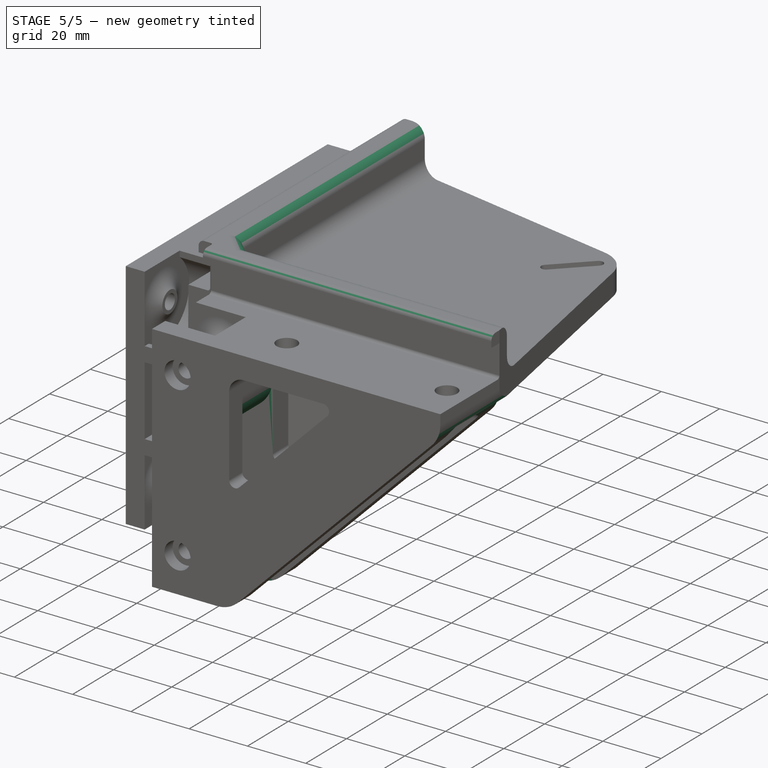
[diagram: stage 5 of 5 — iso view after this stage's code; geometry added in this stage tinted green]
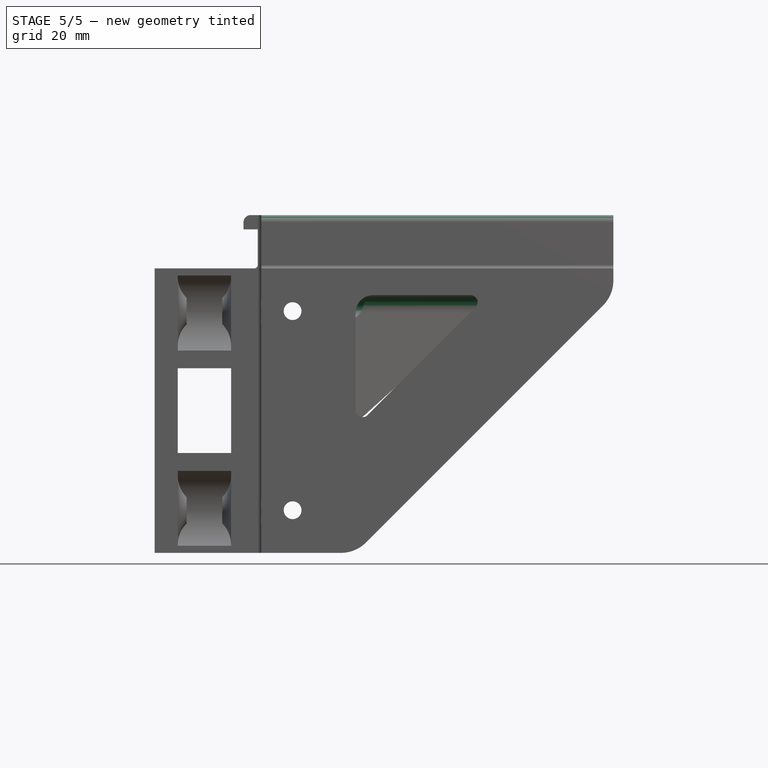
[diagram: stage 5 of 5 — front view after this stage's code; geometry added in this stage tinted green]
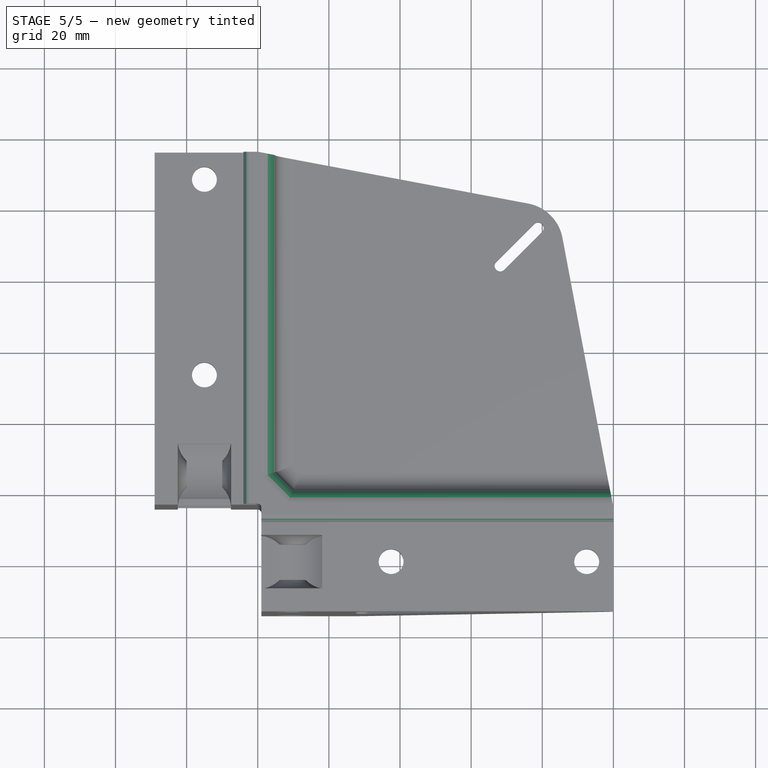
[diagram: stage 5 of 5 — top view after this stage's code; geometry added in this stage tinted green]
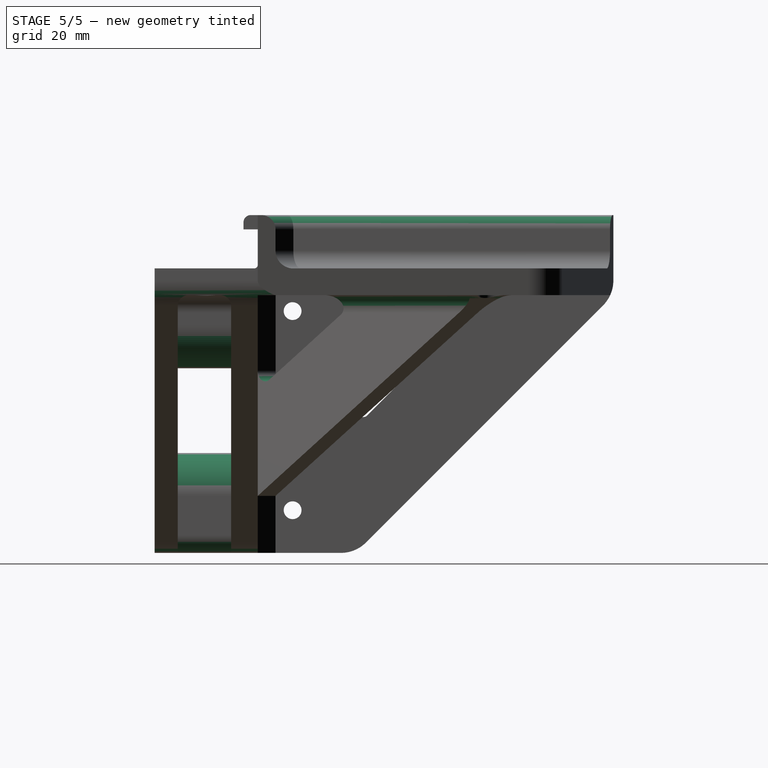
[diagram: stage 5 of 5 — right view after this stage's code; geometry added in this stage tinted green]
FEATURE [PartDesign::Fillet] Fillet012
  Base = -> Fillet011 [Edge58,Edge205]
  BaseFeature = -> Fillet011
  Radius = 3
  Refine = true
  SupportTransform = false
  UseAllEdges = false
FEATURE [PartDesign::Fillet] Fillet013
  Base = -> Fillet012 [Edge241,Edge316,Edge318,Edge373]
  BaseFeature = -> Fillet012
  Radius = 12
  Refine = true
  SupportTransform = false
  UseAllEdges = false
FEATURE [PartDesign::Fillet] Fillet014
  Base = -> Fillet013 [Edge148,Edge59]
  BaseFeature = -> Fillet013
  Radius = 5
  Refine = true
  SupportTransform = false
  UseAllEdges = false
FEATURE [PartDesign::Fillet] Fillet015
  Base = -> Fillet014 [Edge33,Edge39,Edge25,Edge30]
  BaseFeature = -> Fillet014
  Radius = 10
  Refine = true
  SupportTransform = false
  UseAllEdges = false
FEATURE [PartDesign::Fillet] Fillet016
  Base = -> Fillet015 [Edge6,Edge69]
  BaseFeature = -> Fillet015
  Radius = 3
  Refine = true
  SupportTransform = false
  UseAllEdges = false
FEATURE [PartDesign::Fillet] Fillet017
  Base = -> Fillet016 [Edge138,Edge135]
  BaseFeature = -> Fillet016
  Radius = 3
  Refine = true
  SupportTransform = false
  UseAllEdges = false
FEATURE [PartDesign::Fillet] Fillet018
  Base = -> Fillet017 [Edge31,Edge28]
  BaseFeature = -> Fillet017
  Radius = 5
  Refine = true
  SupportTransform = false
  UseAllEdges = false
FEATURE [PartDesign::Fillet] Fillet019
  Base = -> Fillet018 [Edge328,Edge320,Edge318]
  BaseFeature = -> Fillet018
  Radius = 4
  Refine = true
  SupportTransform = false
  UseAllEdges = false
FEATURE [PartDesign::Fillet] Fillet020
  Base = -> Fillet019 [Edge27,Edge20]
  BaseFeature = -> Fillet019
  Radius = 2
  Refine = true
  SupportTransform = false
  UseAllEdges = false
FEATURE [PartDesign::Fillet] Fillet021
  Base = -> Fillet020 [Edge81]
  BaseFeature = -> Fillet020
  Radius = 5
  Refine = true
  SupportTransform = false
  UseAllEdges = false
FEATURE [Sketcher::SketchObject] Sketch035
  ExternalGeometry = -> [Fillet021]
  FullyConstrained = true
  MapMode = 5
  Placement = pos=(0,-14,0) rot=(1,0,0;1.5708rad)
  Support = -> [Fillet021]
  sketch-geometry (4):
    g0: ArcOfCircle CenterX=90 CenterY=76.6421 CenterZ=0 NormalX=0 NormalY=0 NormalZ=1 AngleXU=0 Radius=10 StartAngle=5.49779 EndAngle=6.28319
    g1: LineSegment StartX=100 StartY=76.6421 StartZ=0 EndX=110 EndY=76.6421 EndZ=0
    g2: LineSegment StartX=110 StartY=76.6421 StartZ=0 EndX=110 EndY=69.5711 EndZ=0
    g3: LineSegment StartX=110 StartY=69.5711 StartZ=0 EndX=97.0711 EndY=69.5711 EndZ=0
  constraints (11):
    c: Tangent(g0,g-4) = 1.5708
    c: Tangent(g0,g-3) = 1.5708
    c: Radius(g0) = 10
    c: Coincident(g0,g1)
    c: Coincident(g1,g2)
    c: Vertical(g2)
    c: Coincident(g2,g3)
    c: Horizontal(g3)
    c: Coincident(g0,g3)
    c: Distance(g1) = 10
    c: Horizontal(g1)
FEATURE [PartDesign::Pocket] Pocket021
  BaseFeature = -> Fillet021
  Direction = (0,1,-2e-16)
  Length = 50
  Length2 = 5
  Profile = -> Sketch035
  ReferenceAxis = -> Sketch035 [N_Axis]
  Refine = true
  Type = 0
FEATURE [Sketcher::SketchObject] Sketch036
  ExternalGeometry = -> [Pocket021]
  FullyConstrained = true
  MapMode = 5
  Placement = pos=(-29,0,0) rot=(0.57735,-0.57735,-0.57735;2.0944rad)
  Support = -> [Pocket021]
  sketch-geometry (4):
    g0: ArcOfCircle CenterX=-105 CenterY=76.6421 CenterZ=0 NormalX=0 NormalY=0 NormalZ=1 AngleXU=0 Radius=10 StartAngle=3.14159 EndAngle=3.92699
    g1: LineSegment StartX=-115 StartY=76.6421 StartZ=0 EndX=-125 EndY=76.6421 EndZ=0
    g2: LineSegment StartX=-125 StartY=76.6421 StartZ=0 EndX=-125 EndY=69.5711 EndZ=0
    g3: LineSegment StartX=-125 StartY=69.5711 StartZ=0 EndX=-112.071 EndY=69.5711 EndZ=0
  constraints (11):
    c: Radius(g0) = 10
    c: Tangent(g0,g-4) = -1.5708
    c: Tangent(g0,g-3) = -1.5708
    c: Coincident(g1,g2)
    c: Vertical(g2)
    c: Coincident(g2,g3)
    c: Coincident(g0,g3)
    c: Coincident(g0,g1)
    c: Horizontal(g1)
    c: Horizontal(g3)
    c: Distance(g1) = 10
FEATURE [PartDesign::Pocket] Pocket022
  BaseFeature = -> Pocket021
  Direction = (1,0,0)
  Length = 50
  Length2 = 5
  Profile = -> Sketch036
  ReferenceAxis = -> Sketch036 [N_Axis]
  Refine = true
  Type = 0
FEATURE [Sketcher::SketchObject] Sketch037
  ExternalGeometry = -> [Pocket022]
  FullyConstrained = true
  MapMode = 5
  Placement = pos=(1.1e-15,-1.7e-15,72.5) rot=(1,0,0;3.14159rad)
  Support = -> [Pocket022]
  sketch-geometry (6):
    g0: Circle CenterX=78.8128 CenterY=-93.8128 CenterZ=0 NormalX=0 NormalY=0 NormalZ=1 AngleXU=0 Radius=6.25
    g1: Circle CenterX=92.5 CenterY=-1.7e-15 CenterZ=0 NormalX=0 NormalY=0 NormalZ=1 AngleXU=0 Radius=6.25
    g2: Circle CenterX=-15 CenterY=-52.5 CenterZ=0 NormalX=0 NormalY=0 NormalZ=1 AngleXU=0 Radius=6.25
    g3: Circle CenterX=68.2062 CenterY=-83.2062 CenterZ=0 NormalX=0 NormalY=0 NormalZ=1 AngleXU=0 Radius=6.25
    g4: Circle CenterX=-15 CenterY=-107.5 CenterZ=0 NormalX=0 NormalY=0 NormalZ=1 AngleXU=0 Radius=6.25
    g5: Circle CenterX=37.5 CenterY=0 CenterZ=0 NormalX=0 NormalY=0 NormalZ=1 AngleXU=0 Radius=6.25
  constraints (12):
    c: Coincident(g0,g-5)
    c: Coincident(g2,g-4)
    c: Coincident(g3,g-3)
    c: Equal(g2,g3)
    c: Equal(g3,g0)
    c: Equal(g0,g1)
    c: Diameter(g3) = 12.5
    c: Coincident(g1,g-7)
    c: Coincident(g4,g-8)
    c: Equal(g4,g2)
    c: Coincident(g5,g-9)
    c: Equal(g5,g1)
FEATURE [PartDesign::Pocket] Pocket023
  BaseFeature = -> Pocket022
  Direction = (0,0,1)
  Length = 5
  Length2 = 5
  Profile = -> Sketch037
  ReferenceAxis = -> Sketch037 [N_Axis]
  Refine = true
  Reversed = true
  Type = 0
FEATURE [PartDesign::Body] Body
  Group = -> [Sketch,Pad,Sketch001,Pocket,Sketch002,Pocket001,Sketch003,Pocket002,Fillet,Sketch004,Pocket003,Sketch005,Pocket004,Sketch006,Pocket005,Sketch007,Pad001,Chamfer,Fillet001,Sketch008,Pad002,Chamfer001,Fillet002,Sketch009,Pad003,Chamfer002,Fillet003,Sketch010,Pocket006,Sketch011,Pad004,Chamfer003,Fillet004,Sketch012,Pad005,Chamfer004,Fillet005,Sketch013,Pocket007,Sketch014,Pocket008,Sketch015,+62 more]
  Origin = -> Origin
  Tip = -> Pocket023
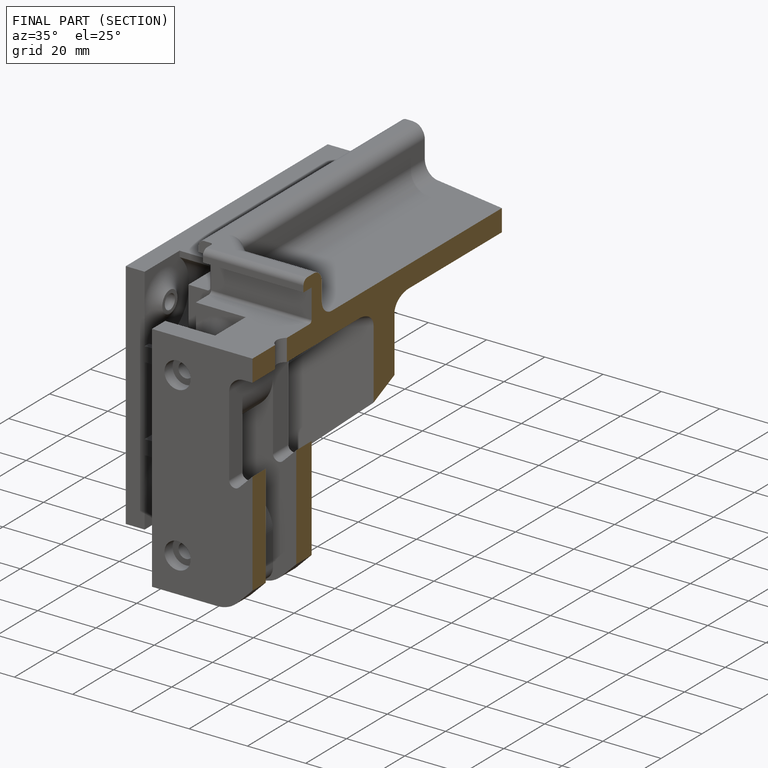
[diagram: finished part — half-section view (interior)]
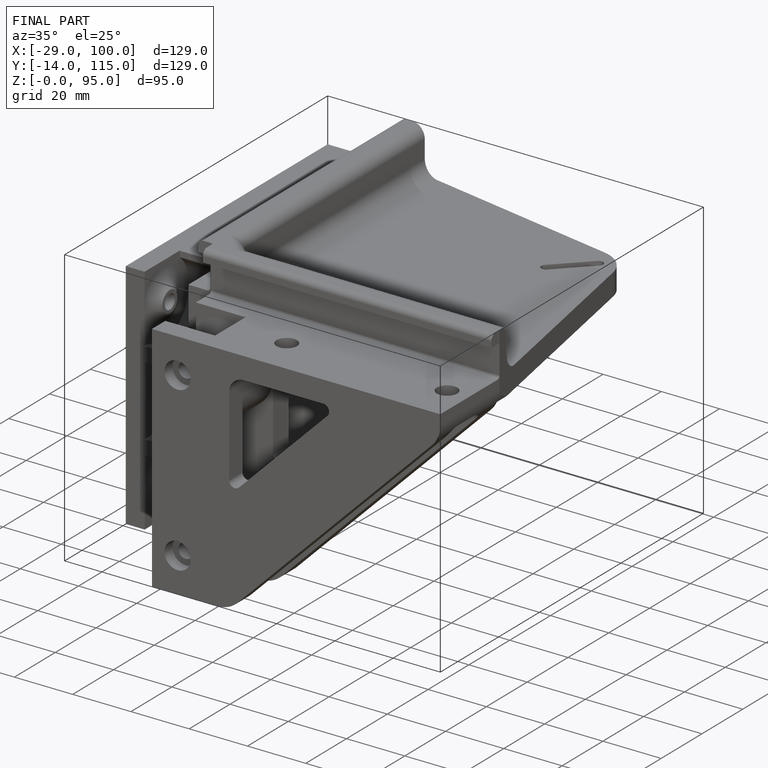
[diagram: finished part — iso view with bounding-box wireframe]
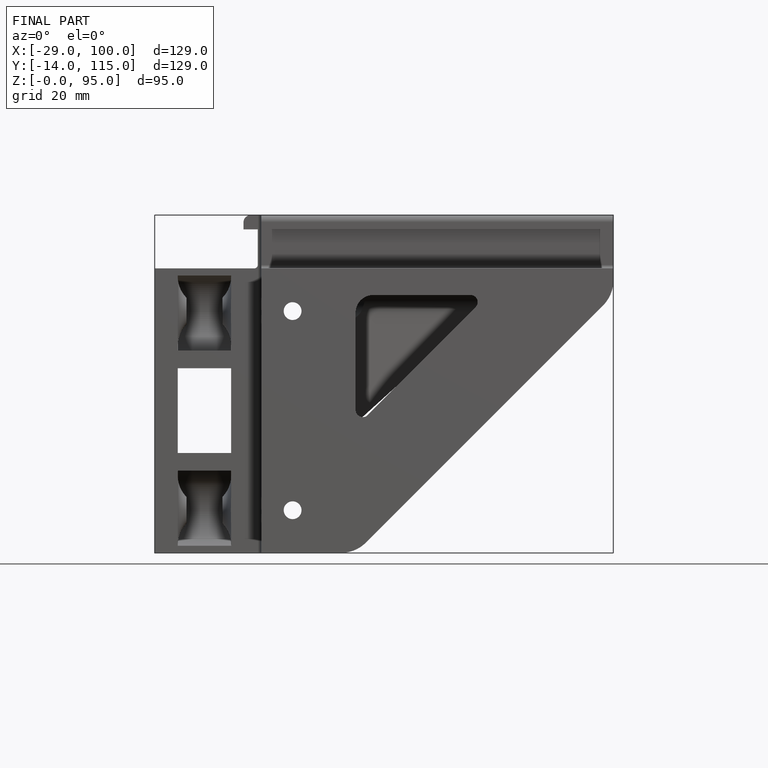
[diagram: finished part — front view with bounding-box wireframe]
